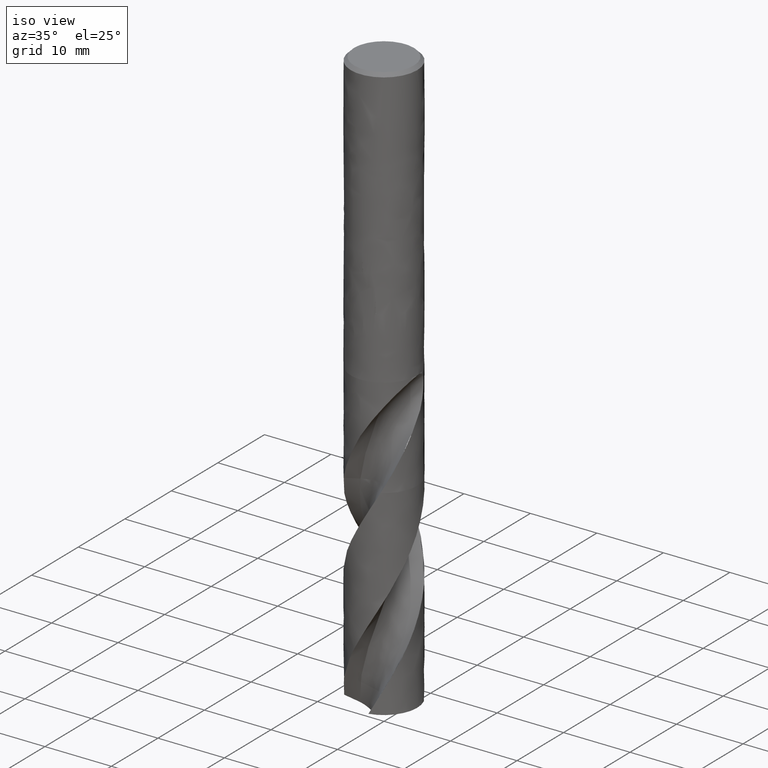
[diagram: clean part render]
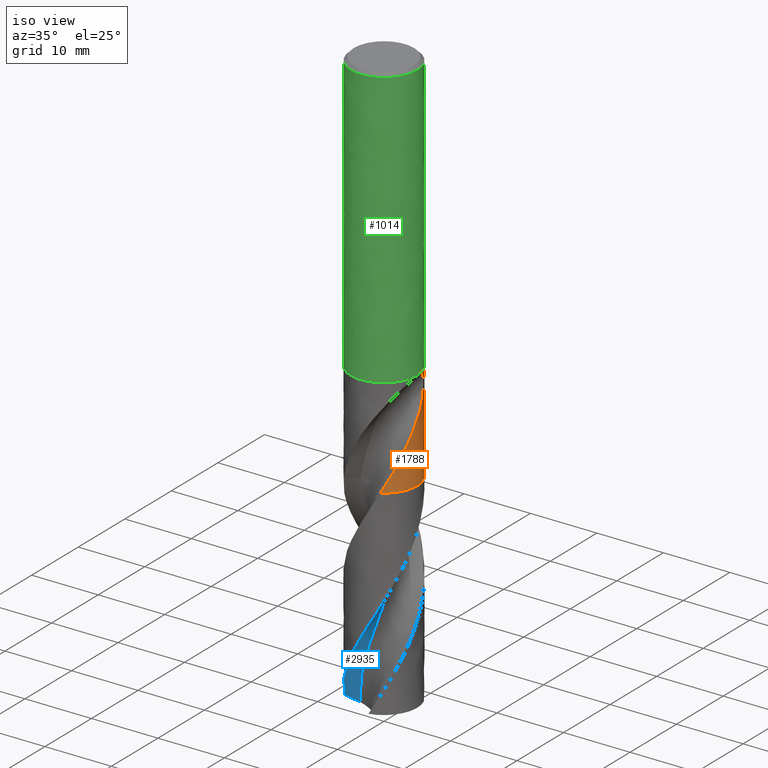
[diagram: same view with three faces highlighted in distinct colors, each labeled with its STEP entity id]
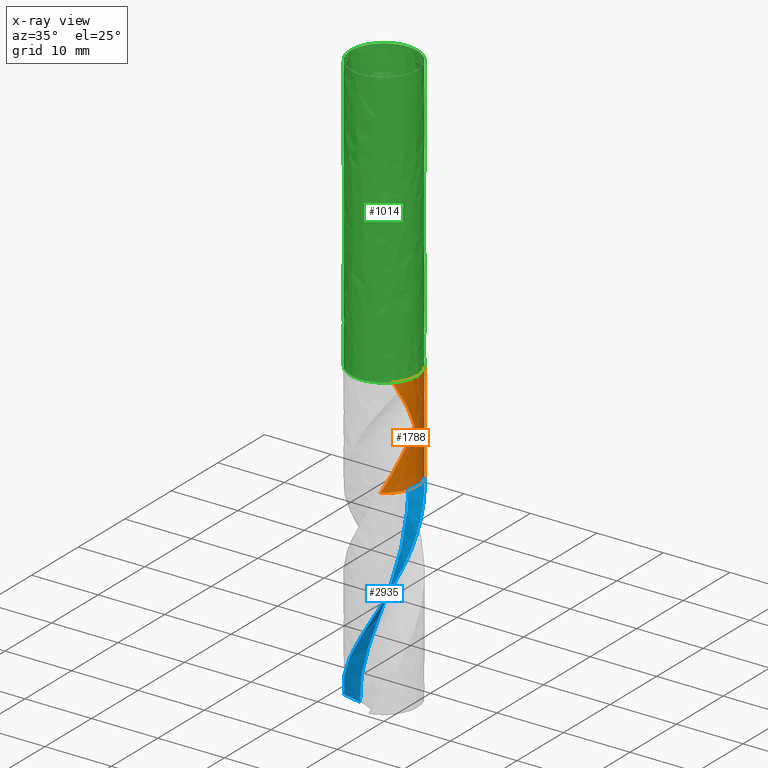
[diagram: x-ray of the same camera — body ghosted, the three highlighted faces saturated]
A machine part, iso view with three faces highlighted in distinct colors.
The next image is the same camera in x-ray (body ghosted, the three faces saturated) — at least one of them is partly hidden behind the body in this view.
Their STEP definitions:

[orange] entity #1788 — the highlighted face is a freeform B-spline surface patch.
#530 = VERTEX_POINT('', #531);
#531 = CARTESIAN_POINT('', (2.49888504584087, -4.33077054664327, -57.));
#598 = EDGE_CURVE('', #599, #530, #601, .T.);
#599 = VERTEX_POINT('', #600);
#600 = CARTESIAN_POINT('', (4.50780912676406, -2.16325145941535, -51.7296097801276));
#601 = B_SPLINE_CURVE_WITH_KNOTS('', 3, (#602, #603, #604, #605, #606, #607, #608, #609, #610, #611, #612, #613, #614, #615, #616, #617, #618, #619, #620, #621, #622, #623, #624, #625, #626, #627, #628, #629, #630, #631, #632, #633, #634, #635, #636, #637, #638, #639, #640, #641), .UNSPECIFIED., .F., .U., (4, 3, 3, 3, 3, 3, 3, 3, 3, 3, 3, 3, 3, 4), (0., 0.443538132250714, 1.10877140988273, 1.5522265696646, 1.99566824933686, 2.43907652097611, 2.63613322609804, 3.07951469221298, 3.52290078920543, 3.71995041273082, 4.38489248373352, 4.82818440142817, 5.82515596379439, 6.06441392951674), .UNSPECIFIED.);
#602 = CARTESIAN_POINT('', (4.50780912676406, -2.16325145941534, -51.7296097801275));
#603 = CARTESIAN_POINT('', (4.47728715469652, -2.22685350792157, -51.8595391509337));
#604 = CARTESIAN_POINT('', (4.44526179943293, -2.29013382638886, -51.9892820820056));
#605 = CARTESIAN_POINT('', (4.41176936778986, -2.35293243537325, -52.1188700617082));
#606 = CARTESIAN_POINT('', (4.36153630222517, -2.44711988273754, -52.3132304339312));
#607 = CARTESIAN_POINT('', (4.30799600455277, -2.54024081010483, -52.5072855114029));
#608 = CARTESIAN_POINT('', (4.25117125581794, -2.63202259749177, -52.7009802243998));
#609 = CARTESIAN_POINT('', (4.21329096798948, -2.69320580729092, -52.8301002230365));
#610 = CARTESIAN_POINT('', (4.17394560455746, -2.75380393083669, -52.959077687096));
#611 = CARTESIAN_POINT('', (4.1331395218874, -2.81374442560314, -53.0878886964062));
#612 = CARTESIAN_POINT('', (4.09233467963694, -2.87368309830389, -53.2166957901311));
#613 = CARTESIAN_POINT('', (4.05006540648036, -2.93296824575025, -53.3453532858913));
#614 = CARTESIAN_POINT('', (4.00637533614077, -2.99148068119505, -53.4738695093111));
#615 = CARTESIAN_POINT('', (3.96268855732604, -3.04998870842686, -53.6023760505688));
#616 = CARTESIAN_POINT('', (3.91757592489739, -3.10773105487842, -53.7307568283361));
#617 = CARTESIAN_POINT('', (3.87109441753696, -3.16458970650452, -53.8590230290616));
#618 = CARTESIAN_POINT('', (3.85043739944462, -3.18985846954696, -53.9160262843235));
#619 = CARTESIAN_POINT('', (3.82950946897327, -3.21495364979097, -53.9730092279596));
#620 = CARTESIAN_POINT('', (3.80831625944782, -3.23986531634038, -54.0299728183692));
#621 = CARTESIAN_POINT('', (3.76063112077028, -3.29591705652964, -54.1581420182721));
#622 = CARTESIAN_POINT('', (3.71159436807001, -3.35104809397128, -54.2862214967419));
#623 = CARTESIAN_POINT('', (3.66129008778325, -3.40513654544134, -54.4142329518352));
#624 = CARTESIAN_POINT('', (3.61098528209572, -3.45922556183575, -54.5422457439383));
#625 = CARTESIAN_POINT('', (3.55940624068419, -3.51227798560211, -54.6702062819506));
#626 = CARTESIAN_POINT('', (3.50668851434369, -3.56414585326836, -54.7981673531599));
#627 = CARTESIAN_POINT('', (3.48325970545912, -3.58719696801017, -54.8550358050098));
#628 = CARTESIAN_POINT('', (3.45960689052871, -3.61001374120938, -54.911907881635));
#629 = CARTESIAN_POINT('', (3.43574161781927, -3.63258579190975, -54.9687870085453));
#630 = CARTESIAN_POINT('', (3.35520848318775, -3.70875496123348, -55.1607250786003));
#631 = CARTESIAN_POINT('', (3.27222864866354, -3.78216450503792, -55.3527668452792));
#632 = CARTESIAN_POINT('', (3.18694996933047, -3.85270682676277, -55.5448055876266));
#633 = CARTESIAN_POINT('', (3.13009787506756, -3.8997347445916, -55.67283060827));
#634 = CARTESIAN_POINT('', (3.07221197704726, -3.94549848442977, -55.8008713394425));
#635 = CARTESIAN_POINT('', (3.01332933229081, -3.98996821229891, -55.9288927010892));
#636 = CARTESIAN_POINT('', (2.88090119634737, -4.08998143677246, -56.2168150652075));
#637 = CARTESIAN_POINT('', (2.74338812163386, -4.18346352583388, -56.5047856891781));
#638 = CARTESIAN_POINT('', (2.60165714937277, -4.26982201937241, -56.7926983254312));
#639 = CARTESIAN_POINT('', (2.56764387819926, -4.29054674038434, -56.8617929658964));
#640 = CARTESIAN_POINT('', (2.53337905418993, -4.31086726137192, -56.9309021806323));
#641 = CARTESIAN_POINT('', (2.49888504584087, -4.33077054664327, -57.));
#644 = VERTEX_POINT('', #645);
#645 = CARTESIAN_POINT('', (4.91576224831516, -0.913937370961214, -49.4225273780345));
#654 = EDGE_CURVE('', #644, #655, #657, .T.);
#655 = VERTEX_POINT('', #656);
#656 = CARTESIAN_POINT('', (4.96875036548666, 0.558139593180971, -42.));
#657 = B_SPLINE_CURVE_WITH_KNOTS('', 3, (#658, #659, #660, #661, #662, #663, #664, #665, #666, #667, #668, #669, #670, #671, #672, #673, #674, #675, #676, #677, #678, #679, #680, #681, #682, #683, #684, #685, #686, #687, #688, #689, #690, #691, #692, #693, #694, #695, #696, #697, #698, #699, #700, #701, #702, #703, #704, #705, #706, #707, #708, #709, #710, #711, #712, #713, #714, #715, #716, #717, #718, #719, #720, #721, #722, #723, #724, #725, #726, #727, #728, #729, #730, #731, #732, #733, #734, #735, #736, #737, #738, #739, #740, #741, #742, #743, #744, #745, #746, #747, #748, #749, #750, #751, #752, #753, #754, #755, #756, #757, #758, #759, #760, #761, #762, #763, #764, #765, #766, #767, #768, #769, #770, #771, #772, #773, #774, #775, #776, #777, #778), .UNSPECIFIED., .F., .U., (4, 3, 3, 3, 3, 3, 3, 3, 3, 3, 3, 3, 3, 3, 3, 3, 3, 3, 3, 3, 3, 3, 3, 3, 3, 3, 3, 3, 3, 3, 3, 3, 3, 3, 3, 3, 3, 3, 3, 3, 4), (0., 0.295344221535343, 0.590609700820748, 0.885783969001289, 1.18085766597472, 1.47582557977458, 1.60705238202402, 1.66541396342929, 1.96085482171104, 2.25617861823119, 2.55137978347731, 2.84645004682428, 3.14139342479132, 3.58303603359418, 3.87768860869778, 4.1722472535933, 4.46673402002965, 4.76117204975354, 5.05559699994133, 5.3500600415832, 5.64462593784466, 5.93938157636023, 6.23445222099013, 6.53000991950562, 6.72730130492551, 6.85886734931318, 6.89781413853448, 7.09576551957113, 7.29416961717069, 7.42630358915734, 7.55857883881599, 7.69098120128331, 7.82347969265544, 7.95602554252842, 8.08855631808143, 8.22100540731968, 8.35331390957391, 8.48544012146366, 8.617363246107, 8.74908136888184, 8.79734717165698), .UNSPECIFIED.);
#658 = CARTESIAN_POINT('', (4.91576224831516, -0.913937370961212, -49.4225273780345));
#659 = CARTESIAN_POINT('', (4.92561953914816, -0.860918313324286, -49.3401633289078));
#660 = CARTESIAN_POINT('', (4.93470176601981, -0.807287581822047, -49.2580943885015));
#661 = CARTESIAN_POINT('', (4.94294531353319, -0.753187644229691, -49.1762575757537));
#662 = CARTESIAN_POINT('', (4.95118666321966, -0.699102130318236, -49.0944425816647));
#663 = CARTESIAN_POINT('', (4.95859046979684, -0.644542575813344, -49.012851079877));
#664 = CARTESIAN_POINT('', (4.9651083648658, -0.589660008089093, -48.9314122886201));
#665 = CARTESIAN_POINT('', (4.97162424647755, -0.534794394258849, -48.8499986547984));
#666 = CARTESIAN_POINT('', (4.97725530847013, -0.479600895338786, -48.7687298678894));
#667 = CARTESIAN_POINT('', (4.98196981638965, -0.424236665772803, -48.6875298213017));
#668 = CARTESIAN_POINT('', (4.98668271799112, -0.36889129980029, -48.6063574410371));
#669 = CARTESIAN_POINT('', (4.99048006392093, -0.313370354588413, -48.5252463569579));
#670 = CARTESIAN_POINT('', (4.99334761577889, -0.257836358951503, -48.444116653588));
#671 = CARTESIAN_POINT('', (4.99621413962676, -0.20232227211148, -48.3630160350114));
#672 = CARTESIAN_POINT('', (4.99815169850873, -0.146791157768964, -48.2818888222904));
#673 = CARTESIAN_POINT('', (4.99916434264602, -0.0914104765203466, -48.2006527722483));
#674 = CARTESIAN_POINT('', (4.99961485283963, -0.0667724417828374, -48.1645120715969));
#675 = CARTESIAN_POINT('', (4.9998825722367, -0.0421633664136007, -48.1283488588457));
#676 = CARTESIAN_POINT('', (4.99996903244241, -0.0175975741766458, -48.0921563135478));
#677 = CARTESIAN_POINT('', (5.00000748460498, -0.00667222616201603, -48.0760601034561));
#678 = CARTESIAN_POINT('', (5.00001009493198, 0.00424462899285607, -48.0599579994531));
#679 = CARTESIAN_POINT('', (4.99997704240618, 0.0151517461421999, -48.0438494181951));
#680 = CARTESIAN_POINT('', (4.99980972228984, 0.070366289243845, -47.9623037685061));
#681 = CARTESIAN_POINT('', (4.99872706871735, 0.12533408698961, -47.8805868541775));
#682 = CARTESIAN_POINT('', (4.99676266861933, 0.179896730078002, -47.7986269501963));
#683 = CARTESIAN_POINT('', (4.99479904687044, 0.23443775395247, -47.7166995209744));
#684 = CARTESIAN_POINT('', (4.99195422577846, 0.288579688725504, -47.6345208950887));
#685 = CARTESIAN_POINT('', (4.98827835996071, 0.342168092533236, -47.5520257210336));
#686 = CARTESIAN_POINT('', (4.98460402052219, 0.395734244106945, -47.4695648025596));
#687 = CARTESIAN_POINT('', (4.98009876781838, 0.448754436452912, -47.3867788234736));
#688 = CARTESIAN_POINT('', (4.97482991296929, 0.501066200243078, -47.3036021742381));
#689 = CARTESIAN_POINT('', (4.96956339450361, 0.553354767277833, -47.2204624082628));
#690 = CARTESIAN_POINT('', (4.96353333856419, 0.604942177882229, -47.1369216112553));
#691 = CARTESIAN_POINT('', (4.95682338434037, 0.655669075415707, -47.0529227450327));
#692 = CARTESIAN_POINT('', (4.95011631551435, 0.706374159495017, -46.9689599997934));
#693 = CARTESIAN_POINT('', (4.94272896599085, 0.756227086886527, -46.8845273580317));
#694 = CARTESIAN_POINT('', (4.93476075268537, 0.805069136010165, -46.7995762266327));
#695 = CARTESIAN_POINT('', (4.92282930151671, 0.878204292130371, -46.6723720169623));
#696 = CARTESIAN_POINT('', (4.90958724727953, 0.94910003058161, -46.5439628414674));
#697 = CARTESIAN_POINT('', (4.89543711423202, 1.01719981350751, -46.4142161079988));
#698 = CARTESIAN_POINT('', (4.88599650986685, 1.06263423492238, -46.3276524287573));
#699 = CARTESIAN_POINT('', (4.87615117391787, 1.10683481389972, -46.2404711658526));
#700 = CARTESIAN_POINT('', (4.86604077229729, 1.1496291586163, -46.1526468750028));
#701 = CARTESIAN_POINT('', (4.85593359370005, 1.19240986122674, -46.0648505810369));
#702 = CARTESIAN_POINT('', (4.84555888058669, 1.23379660797147, -45.9763891491701));
#703 = CARTESIAN_POINT('', (4.83507209535842, 1.27360819433892, -45.8872510667605));
#704 = CARTESIAN_POINT('', (4.82458786912469, 1.31341006584811, -45.7981347359039));
#705 = CARTESIAN_POINT('', (4.81398823028242, 1.35165056481962, -45.70831460308));
#706 = CARTESIAN_POINT('', (4.80344599972155, 1.3881305874301, -45.6177944521421));
#707 = CARTESIAN_POINT('', (4.7929055138695, 1.42460457270182, -45.5272892820287));
#708 = CARTESIAN_POINT('', (4.78241874649989, 1.45933156238303, -45.4360493326001));
#709 = CARTESIAN_POINT('', (4.77217788481695, 1.49208519718682, -45.3440984575636));
#710 = CARTESIAN_POINT('', (4.76193747805391, 1.52483737700754, -45.2521516671719));
#711 = CARTESIAN_POINT('', (4.75193805447677, 1.55563256730329, -45.1594506821209));
#712 = CARTESIAN_POINT('', (4.7423908482677, 1.5842124359652, -45.0660492611581));
#713 = CARTESIAN_POINT('', (4.73284240688148, 1.61279600216957, -44.9726357563146));
#714 = CARTESIAN_POINT('', (4.72374050610413, 1.63918173420365, -44.8784659145099));
#715 = CARTESIAN_POINT('', (4.71531860745077, 1.66306056120292, -44.7836336988804));
#716 = CARTESIAN_POINT('', (4.70689376706598, 1.68694772896936, -44.6887683587833));
#717 = CARTESIAN_POINT('', (4.69914323467171, 1.70834497676398, -44.5931667655629));
#718 = CARTESIAN_POINT('', (4.69232526792099, 1.72687103746349, -44.496983046174));
#719 = CARTESIAN_POINT('', (4.68550290943179, 1.74540903157608, -44.4007373708154));
#720 = CARTESIAN_POINT('', (4.67960762645666, 1.76109255168412, -44.3038105616007));
#721 = CARTESIAN_POINT('', (4.67492206534879, 1.7734440174178, -44.2064508233223));
#722 = CARTESIAN_POINT('', (4.67023149676963, 1.78580868319489, -44.1089870364395));
#723 = CARTESIAN_POINT('', (4.66674751112022, 1.79485309783158, -44.0109536509437));
#724 = CARTESIAN_POINT('', (4.66477656311164, 1.79996100408992, -43.9127492681264));
#725 = CARTESIAN_POINT('', (4.66280236178761, 1.80507734163627, -43.8143827857336));
#726 = CARTESIAN_POINT('', (4.66234526366252, 1.80625335876384, -43.7156514444353));
#727 = CARTESIAN_POINT('', (4.66372069240419, 1.80269501115441, -43.6172061012384));
#728 = CARTESIAN_POINT('', (4.6646388219043, 1.80031973440407, -43.5514916290897));
#729 = CARTESIAN_POINT('', (4.6663747770375, 1.79582873495479, -43.4858147595635));
#730 = CARTESIAN_POINT('', (4.66901381520043, 1.78894102570978, -43.4204659134365));
#731 = CARTESIAN_POINT('', (4.67077368835122, 1.78434787706151, -43.3768872788603));
#732 = CARTESIAN_POINT('', (4.67293639262402, 1.77868455222356, -43.3334196803919));
#733 = CARTESIAN_POINT('', (4.67552272118026, 1.77185983749542, -43.2901758862358));
#734 = CARTESIAN_POINT('', (4.67628833812654, 1.76983955386335, -43.2773746581988));
#735 = CARTESIAN_POINT('', (4.67709114684847, 1.76771719158442, -43.2645912652018));
#736 = CARTESIAN_POINT('', (4.67793159081124, 1.76549030914651, -43.2518290630771));
#737 = CARTESIAN_POINT('', (4.68220324057853, 1.75417193187322, -43.1869637536088));
#738 = CARTESIAN_POINT('', (4.68745743127902, 1.74013613809877, -43.1225515579978));
#739 = CARTESIAN_POINT('', (4.69372661013598, 1.72305847529948, -43.0591251292947));
#740 = CARTESIAN_POINT('', (4.70001012666056, 1.70594175573401, -42.995553643787));
#741 = CARTESIAN_POINT('', (4.70733242771631, 1.68571902835319, -42.9328053686828));
#742 = CARTESIAN_POINT('', (4.71565771818099, 1.66209875908745, -42.8715961303544));
#743 = CARTESIAN_POINT('', (4.72120222915809, 1.64636803560323, -42.8308317515917));
#744 = CARTESIAN_POINT('', (4.72720002212456, 1.62910303575341, -42.7906788764012));
#745 = CARTESIAN_POINT('', (4.73361478708431, 1.61024564818439, -42.7513955266993));
#746 = CARTESIAN_POINT('', (4.74003641071217, 1.59136809829242, -42.7120701752312));
#747 = CARTESIAN_POINT('', (4.74688770976752, 1.57085966620682, -42.6735468122599));
#748 = CARTESIAN_POINT('', (4.75410552960522, 1.54870288092233, -42.6361160448262));
#749 = CARTESIAN_POINT('', (4.76133028556554, 1.52652480358799, -42.5986493074738));
#750 = CARTESIAN_POINT('', (4.76893737464684, 1.50264789108332, -42.5622010617913));
#751 = CARTESIAN_POINT('', (4.77683333078357, 1.47711317437598, -42.5270805159508));
#752 = CARTESIAN_POINT('', (4.7847350196701, 1.4515599185406, -42.4919344713236));
#753 = CARTESIAN_POINT('', (4.79294426116584, 1.4242857491629, -42.4580377745828));
#754 = CARTESIAN_POINT('', (4.80133799124767, 1.39540441944326, -42.4256948601667));
#755 = CARTESIAN_POINT('', (4.80973472147289, 1.36651276676475, -42.3933403855289));
#756 = CARTESIAN_POINT('', (4.81833683371033, 1.33593912045505, -42.3624604010724));
#757 = CARTESIAN_POINT('', (4.82699823640555, 1.30387423693304, -42.3333250608455));
#758 = CARTESIAN_POINT('', (4.83565865404725, 1.27181300012132, -42.3041930341547));
#759 = CARTESIAN_POINT('', (4.84440045269669, 1.23817653459206, -42.2767292835594));
#760 = CARTESIAN_POINT('', (4.85306658603695, 1.20322263587904, -42.2511417120366));
#761 = CARTESIAN_POINT('', (4.86172737794241, 1.16829028125764, -42.2255699116011));
#762 = CARTESIAN_POINT('', (4.87033460795792, 1.13195115898314, -42.2018046487162));
#763 = CARTESIAN_POINT('', (4.87873489079992, 1.09450713350416, -42.1799740303685));
#764 = CARTESIAN_POINT('', (4.88712625723157, 1.05710285267456, -42.1581665839491));
#765 = CARTESIAN_POINT('', (4.89533161773816, 1.01850330879734, -42.1382339334954));
#766 = CARTESIAN_POINT('', (4.90321417130829, 0.979025428822761, -42.1202222063091));
#767 = CARTESIAN_POINT('', (4.91108586455168, 0.93960194019119, -42.1022352950965));
#768 = CARTESIAN_POINT('', (4.91865353356978, 0.899212767497855, -42.0861210086274));
#769 = CARTESIAN_POINT('', (4.92580504748176, 0.858163524162624, -42.0718549841026));
#770 = CARTESIAN_POINT('', (4.93294556901572, 0.817177376390923, -42.0576108874572));
#771 = CARTESIAN_POINT('', (4.93968588871004, 0.775449966086918, -42.0451785199102));
#772 = CARTESIAN_POINT('', (4.94594110244128, 0.733257534011003, -42.0344819492971));
#773 = CARTESIAN_POINT('', (4.95218659588651, 0.691130666842192, -42.0238020006142));
#774 = CARTESIAN_POINT('', (4.95795983465945, 0.648465676916965, -42.0148319953895));
#775 = CARTESIAN_POINT('', (4.96320146615682, 0.60550078971148, -42.0074642144231));
#776 = CARTESIAN_POINT('', (4.96512217036017, 0.589757058109258, -42.0047644199261));
#777 = CARTESIAN_POINT('', (4.96697252718047, 0.573966520425645, -42.002278320582));
#778 = CARTESIAN_POINT('', (4.96875036548666, 0.558139593180972, -42.));
#973 = EDGE_CURVE('', #644, #599, #974, .T.);
#974 = B_SPLINE_CURVE_WITH_KNOTS('', 3, (#975, #976, #977, #978, #979, #980, #981, #982, #983, #984, #985, #986, #987, #988, #989, #990, #991, #992, #993, #994, #995, #996, #997, #998, #999), .UNSPECIFIED., .F., .U., (4, 3, 3, 3, 3, 3, 3, 3, 4), (0., 0.443936980465237, 0.739783554490579, 1.03563893588282, 1.33141696599083, 1.62707101147293, 1.9226939307128, 2.05408032846361, 2.65812193535426), .UNSPECIFIED.);
#975 = CARTESIAN_POINT('', (4.91576224831516, -0.913937370961214, -49.4225273780345));
#976 = CARTESIAN_POINT('', (4.90094558488013, -0.993631228630384, -49.5463301972605));
#977 = CARTESIAN_POINT('', (4.88443833948813, -1.07162483159131, -49.6710508413826));
#978 = CARTESIAN_POINT('', (4.86648393271429, -1.14775177309107, -49.7966697514604));
#979 = CARTESIAN_POINT('', (4.85451883413851, -1.1984839621737, -49.8803841654756));
#980 = CARTESIAN_POINT('', (4.84190949898331, -1.24839455867595, -49.9645120420187));
#981 = CARTESIAN_POINT('', (4.82873815158145, -1.29741584060916, -50.0490605560931));
#982 = CARTESIAN_POINT('', (4.81556641206793, -1.34643858190833, -50.1336115871809));
#983 = CARTESIAN_POINT('', (4.80183078405628, -1.39457805361606, -50.2185949116225));
#984 = CARTESIAN_POINT('', (4.78762586251703, -1.4417484525951, -50.304027776543));
#985 = CARTESIAN_POINT('', (4.77342465484947, -1.4889065188901, -50.3894383050714));
#986 = CARTESIAN_POINT('', (4.75875495293743, -1.53510160726549, -50.4753085704345));
#987 = CARTESIAN_POINT('', (4.74364309927205, -1.58045884056823, -50.5615342578212));
#988 = CARTESIAN_POINT('', (4.72853758021347, -1.62579706096591, -50.6477238010102));
#989 = CARTESIAN_POINT('', (4.71298977826065, -1.67030290058957, -50.7342771978444));
#990 = CARTESIAN_POINT('', (4.69696608626332, -1.71420815086515, -50.8210408917665));
#991 = CARTESIAN_POINT('', (4.6809440812286, -1.758108778828, -50.9077954512702));
#992 = CARTESIAN_POINT('', (4.66444575624228, -1.80141322228033, -50.9947657949487));
#993 = CARTESIAN_POINT('', (4.64736567880319, -1.84444903629298, -51.0817515009151));
#994 = CARTESIAN_POINT('', (4.63977462377337, -1.86357583671812, -51.1204113537849));
#995 = CARTESIAN_POINT('', (4.63206755422759, -1.88265099163278, -51.1590741975541));
#996 = CARTESIAN_POINT('', (4.62423045752162, -1.90170783132673, -51.1977195027151));
#997 = CARTESIAN_POINT('', (4.58819984424143, -1.98932058476277, -51.3753891293112));
#998 = CARTESIAN_POINT('', (4.54937610762227, -2.07663369019156, -51.5526627710265));
#999 = CARTESIAN_POINT('', (4.50780912676406, -2.16325145941535, -51.7296097801276));
#1021 = VERTEX_POINT('', #1022);
#1022 = CARTESIAN_POINT('', (-4.99978048467422, 0.0468519484205006, -42.));
#1079 = EDGE_CURVE('', #1021, #655, #1080, .T.);
#1080 = CIRCLE('', #1081, 5.);
#1081 = AXIS2_PLACEMENT_3D('', #1082, #1083, #1084);
#1082 = CARTESIAN_POINT('', (1.57474777179495E-31, 2.57175827820944E-15, -42.));
#1083 = DIRECTION('', (3.74939945665464E-33, 6.12323399573677E-17, -1.));
#1084 = DIRECTION('', (-1., 6.12323399573677E-17, 0.));
#1115 = VERTEX_POINT('', #1116);
#1116 = CARTESIAN_POINT('', (3.74679084011303, 3.31082442911809, -57.));
#1125 = VERTEX_POINT('', #1126);
#1126 = CARTESIAN_POINT('', (-3.11223655636923, 3.91330852568501, -44.9355207943384));
#1146 = EDGE_CURVE('', #1125, #1115, #1147, .T.);
#1147 = B_SPLINE_CURVE_WITH_KNOTS('', 3, (#1148, #1149, #1150, #1151, #1152, #1153, #1154, #1155, #1156, #1157, #1158, #1159, #1160, #1161, #1162, #1163, #1164, #1165, #1166, #1167, #1168, #1169, #1170, #1171, #1172, #1173, #1174, #1175, #1176, #1177, #1178, #1179, #1180, #1181, #1182, #1183, #1184, #1185, #1186, #1187, #1188, #1189, #1190, #1191, #1192, #1193, #1194, #1195, #1196, #1197, #1198, #1199, #1200, #1201, #1202, #1203, #1204, #1205, #1206, #1207, #1208, #1209, #1210, #1211, #1212, #1213, #1214, #1215, #1216, #1217, #1218, #1219, #1220, #1221, #1222, #1223, #1224, #1225, #1226, #1227, #1228, #1229, #1230, #1231, #1232, #1233, #1234, #1235, #1236, #1237, #1238, #1239, #1240, #1241, #1242, #1243, #1244, #1245, #1246, #1247, #1248, #1249, #1250, #1251, #1252, #1253), .UNSPECIFIED., .F., .U., (4, 3, 3, 3, 3, 3, 3, 3, 3, 3, 3, 3, 3, 3, 3, 3, 3, 3, 3, 3, 3, 3, 3, 3, 3, 3, 3, 3, 3, 3, 3, 3, 3, 3, 3, 4), (0., 0.441617862061254, 0.883295515616824, 1.32504069758578, 1.76687823877477, 2.20881301321261, 2.65085381195773, 3.09301118375152, 3.53528518132386, 3.97769816590108, 4.42024799874072, 5.08384617138997, 5.52660437276213, 5.72353704153992, 5.92071011528679, 6.36487586102324, 6.5620632959882, 6.75923084290979, 6.95635677202061, 7.15345846746876, 7.35055410867163, 7.54766215418007, 7.67906677530217, 8.12281270913226, 8.56646739646392, 9.01004648756988, 9.67550793348341, 10.3409468716708, 10.7844638263923, 11.2279605820959, 11.6714702821259, 11.8685458088776, 12.5337714205345, 12.9771865587877, 13.97479093053, 14.281962065101), .UNSPECIFIED.);
#1148 = CARTESIAN_POINT('', (-3.11223655636923, 3.91330852568501, -44.9355207943384));
#1149 = CARTESIAN_POINT('', (-3.03786335632011, 3.97245719502396, -45.0479470142737));
#1150 = CARTESIAN_POINT('', (-2.96227095829552, 4.02911256481388, -45.1609122601688));
#1151 = CARTESIAN_POINT('', (-2.88567430060519, 4.08324427763351, -45.2743684305473));
#1152 = CARTESIAN_POINT('', (-2.80906727234561, 4.13738331945016, -45.3878399619755));
#1153 = CARTESIAN_POINT('', (-2.73142846686673, 4.18901711805797, -45.501842226604));
#1154 = CARTESIAN_POINT('', (-2.65297902425653, 4.23812485621352, -45.6163392836826));
#1155 = CARTESIAN_POINT('', (-2.57451758745475, 4.2872401024864, -45.7308538462984));
#1156 = CARTESIAN_POINT('', (-2.49522275661122, 4.33384308124789, -45.8459050949925));
#1157 = CARTESIAN_POINT('', (-2.41529711072061, 4.37793785553709, -45.9614457005902));
#1158 = CARTESIAN_POINT('', (-2.33535475413203, 4.4220418490756, -46.0770104631921));
#1159 = CARTESIAN_POINT('', (-2.25475489421618, 4.46365111939026, -46.1931009547815));
#1160 = CARTESIAN_POINT('', (-2.17370010807329, 4.50278001241035, -46.3096780037773));
#1161 = CARTESIAN_POINT('', (-2.09262748455931, 4.54191751635424, -46.4262807073727));
#1162 = CARTESIAN_POINT('', (-2.01107547997199, 4.57858511801088, -46.5434060731033));
#1163 = CARTESIAN_POINT('', (-1.92925167475191, 4.61280695189675, -46.6610259522435));
#1164 = CARTESIAN_POINT('', (-1.84740823923169, 4.64703699592231, -46.7786740494985));
#1165 = CARTESIAN_POINT('', (-1.76526647074106, 4.67883155404652, -46.8968485388196));
#1166 = CARTESIAN_POINT('', (-1.68301145001801, 4.70823453739385, -47.0155106421871));
#1167 = CARTESIAN_POINT('', (-1.6007347373639, 4.7376452747662, -47.1342040386008));
#1168 = CARTESIAN_POINT('', (-1.51832167796704, 4.7646712772293, -47.2534177204411));
#1169 = CARTESIAN_POINT('', (-1.43596076452965, 4.78936495610133, -47.3731234990473));
#1170 = CARTESIAN_POINT('', (-1.35357812713997, 4.81406514830935, -47.4928608518858));
#1171 = CARTESIAN_POINT('', (-1.27123193507795, 4.83643676535524, -47.6131261219404));
#1172 = CARTESIAN_POINT('', (-1.18909326260918, 4.85654786991929, -47.7338854448164));
#1173 = CARTESIAN_POINT('', (-1.10692877761666, 4.87666529450713, -47.8546827169652));
#1174 = CARTESIAN_POINT('', (-1.02494756915307, 4.89452689670552, -47.9760013807958));
#1175 = CARTESIAN_POINT('', (-0.943307655780459, 4.91021085764616, -48.0978070959263));
#1176 = CARTESIAN_POINT('', (-0.861642489350912, 4.92589966998781, -48.2196504882974));
#1177 = CARTESIAN_POINT('', (-0.780299087524788, 4.93941306166111, -48.3420095194607));
#1178 = CARTESIAN_POINT('', (-0.699443825920688, 4.95083612477548, -48.4648634604035));
#1179 = CARTESIAN_POINT('', (-0.578202329781653, 4.96796487106855, -48.6490814730717));
#1180 = CARTESIAN_POINT('', (-0.458014505655192, 4.98039750435676, -48.8344909407895));
#1181 = CARTESIAN_POINT('', (-0.339391341661622, 4.98846805314068, -49.0210186377504));
#1182 = CARTESIAN_POINT('', (-0.260244983374965, 4.99385279018628, -49.1454714632951));
#1183 = CARTESIAN_POINT('', (-0.181773627257921, 4.99729847152518, -49.2704545261476));
#1184 = CARTESIAN_POINT('', (-0.104113798823132, 4.99891591416538, -49.3959454905073));
#1185 = CARTESIAN_POINT('', (-0.0695717909662673, 4.99963533007849, -49.4517621200859));
#1186 = CARTESIAN_POINT('', (-0.0351867580400331, 4.99999330312183, -49.5076819821108));
#1187 = CARTESIAN_POINT('', (-0.000964847501432127, 4.99999990690693, -49.5637000577564));
#1188 = CARTESIAN_POINT('', (0.0332988393325705, 5.00000651875358, -49.6197865173009));
#1189 = CARTESIAN_POINT('', (0.0674003153119547, 4.99966088657939, -49.6759735009007));
#1190 = CARTESIAN_POINT('', (0.101331278077623, 4.99897309175427, -49.7322576720992));
#1191 = CARTESIAN_POINT('', (0.177766518924537, 4.99742371741217, -49.8590473011213));
#1192 = CARTESIAN_POINT('', (0.253352075963272, 4.99413657486642, -49.9863430994145));
#1193 = CARTESIAN_POINT('', (0.327940057536306, 4.98923394106381, -50.1141435447126));
#1194 = CARTESIAN_POINT('', (0.361053400712318, 4.98705741621157, -50.1708805674065));
#1195 = CARTESIAN_POINT('', (0.393970945031596, 4.98456259128449, -50.2277209837458));
#1196 = CARTESIAN_POINT('', (0.426673954096173, 4.98176167002156, -50.2846682272182));
#1197 = CARTESIAN_POINT('', (0.459373664781911, 4.97896103125555, -50.3416097270728));
#1198 = CARTESIAN_POINT('', (0.491858067659873, 4.97585453682099, -50.3986610993821));
#1199 = CARTESIAN_POINT('', (0.524125119315523, 4.97245340443755, -50.4558163155753));
#1200 = CARTESIAN_POINT('', (0.556385360093466, 4.9690529899597, -50.5129594675367));
#1201 = CARTESIAN_POINT('', (0.588429343307588, 4.9653580778591, -50.5702083166464));
#1202 = CARTESIAN_POINT('', (0.620274015837375, 4.96137683967637, -50.6275467186451));
#1203 = CARTESIAN_POINT('', (0.652114773544515, 4.95739609092687, -50.6848780717512));
#1204 = CARTESIAN_POINT('', (0.683757216874535, 4.95312909176466, -50.7423006474723));
#1205 = CARTESIAN_POINT('', (0.715237824465065, 4.94857907428532, -50.7997883239571));
#1206 = CARTESIAN_POINT('', (0.746717465086134, 4.94402919656592, -50.8572742346301));
#1207 = CARTESIAN_POINT('', (0.778036157346465, 4.93919631233191, -50.91482668837));
#1208 = CARTESIAN_POINT('', (0.809249393233243, 4.93407695719794, -50.9724098907409));
#1209 = CARTESIAN_POINT('', (0.840464593539495, 4.92895727987498, -51.0299967171373));
#1210 = CARTESIAN_POINT('', (0.871575160806699, 4.92355107321719, -51.0876155475373));
#1211 = CARTESIAN_POINT('', (0.902653952065406, 4.91784666727428, -51.1452211973227));
#1212 = CARTESIAN_POINT('', (0.923373029157104, 4.91404375146879, -51.1836247468329));
#1213 = CARTESIAN_POINT('', (0.944081890820029, 4.9101074259644, -51.2220208422957));
#1214 = CARTESIAN_POINT('', (0.964793285320242, 4.9060344389946, -51.2604008351845));
#1215 = CARTESIAN_POINT('', (1.03473448689245, 4.89228019358862, -51.3900078888738));
#1216 = CARTESIAN_POINT('', (1.10466273093533, 4.87697348186181, -51.5194665804214));
#1217 = CARTESIAN_POINT('', (1.17441915857068, 4.8601172454975, -51.6488066260734));
#1218 = CARTESIAN_POINT('', (1.24416124234554, 4.84326447524391, -51.7781200758169));
#1219 = CARTESIAN_POINT('', (1.31373924460161, 4.82486116231397, -51.9073294195361));
#1220 = CARTESIAN_POINT('', (1.38301042330701, 4.80492270167005, -52.0364568913883));
#1221 = CARTESIAN_POINT('', (1.45226979859905, 4.78498763842599, -52.1655623606566));
#1222 = CARTESIAN_POINT('', (1.5212214751928, 4.76351932152333, -52.294605770007));
#1223 = CARTESIAN_POINT('', (1.58979442773776, 4.74052251102492, -52.4235685045219));
#1224 = CARTESIAN_POINT('', (1.6926682039506, 4.70602248369604, -52.6170395889349));
#1225 = CARTESIAN_POINT('', (1.79471831800044, 4.66807314476667, -52.8103670523207));
#1226 = CARTESIAN_POINT('', (1.89574835410813, 4.62667679635139, -53.0034566697627));
#1227 = CARTESIAN_POINT('', (1.99677497310368, 4.58528184807383, -53.1965397563857));
#1228 = CARTESIAN_POINT('', (2.09682346334322, 4.54041911913717, -53.3894254467347));
#1229 = CARTESIAN_POINT('', (2.19554661977877, 4.49216818923536, -53.5821080457815));
#1230 = CARTESIAN_POINT('', (2.26134588578215, 4.46000880651148, -53.7105315489054));
#1231 = CARTESIAN_POINT('', (2.32656453604128, 4.4263410851514, -53.8388850762187));
#1232 = CARTESIAN_POINT('', (2.39108952528922, 4.39120608512652, -53.9671754616503));
#1233 = CARTESIAN_POINT('', (2.45561157588645, 4.35607268524903, -54.0954600043745));
#1234 = CARTESIAN_POINT('', (2.51944992313775, 4.31946708512259, -54.223695578429));
#1235 = CARTESIAN_POINT('', (2.58251241205389, 4.28142845807186, -54.3518773245787));
#1236 = CARTESIAN_POINT('', (2.645576741573, 4.24338872078888, -54.4800628119651));
#1237 = CARTESIAN_POINT('', (2.70787228668931, 4.20391067025371, -54.6082100630195));
#1238 = CARTESIAN_POINT('', (2.7692673178345, 4.16307080439112, -54.7363443907922));
#1239 = CARTESIAN_POINT('', (2.79654847561313, 4.14492342660707, -54.7932814547145));
#1240 = CARTESIAN_POINT('', (2.82365241710255, 4.12650701391929, -54.8502185929537));
#1241 = CARTESIAN_POINT('', (2.8505655585614, 4.10783105742478, -54.9071598750266));
#1242 = CARTESIAN_POINT('', (2.94141048123481, 4.04479063435895, -55.0993643553079));
#1243 = CARTESIAN_POINT('', (3.03009493751134, 3.97878375489392, -55.291651815341));
#1244 = CARTESIAN_POINT('', (3.11645265896779, 3.90995176753021, -55.4839379526897));
#1245 = CARTESIAN_POINT('', (3.1740155674425, 3.8640708744042, -55.6121088809921));
#1246 = CARTESIAN_POINT('', (3.23055510875337, 3.81692697823629, -55.740297603066));
#1247 = CARTESIAN_POINT('', (3.28603285030874, 3.76855252141878, -55.8684711719776));
#1248 = CARTESIAN_POINT('', (3.41084779850392, 3.65971868730135, -56.1568386670337));
#1249 = CARTESIAN_POINT('', (3.53032884290604, 3.54460295713987, -56.4452612041829));
#1250 = CARTESIAN_POINT('', (3.64374610165785, 3.42390337869708, -56.733614328195));
#1251 = CARTESIAN_POINT('', (3.67866827024245, 3.38673892001717, -56.8224007837969));
#1252 = CARTESIAN_POINT('', (3.71302680785534, 3.34903447906087, -56.9112093937681));
#1253 = CARTESIAN_POINT('', (3.74679084011303, 3.31082442911809, -57.));
#1552 = EDGE_CURVE('', #1125, #1021, #1553, .T.);
#1553 = B_SPLINE_CURVE_WITH_KNOTS('', 3, (#1554, #1555, #1556, #1557, #1558, #1559, #1560, #1561, #1562, #1563, #1564, #1565, #1566, #1567, #1568, #1569, #1570, #1571, #1572, #1573, #1574, #1575, #1576, #1577, #1578, #1579, #1580, #1581, #1582, #1583, #1584, #1585, #1586, #1587, #1588, #1589, #1590, #1591, #1592, #1593, #1594, #1595, #1596, #1597, #1598, #1599, #1600, #1601, #1602, #1603, #1604, #1605), .UNSPECIFIED., .F., .U., (4, 3, 3, 3, 3, 3, 3, 3, 3, 3, 3, 3, 3, 3, 3, 3, 3, 4), (0., 0.447767069739203, 0.895766207094669, 1.3439429688872, 1.79224359108956, 2.24058995543152, 2.68891917858524, 2.98662818473219, 3.28428462520408, 3.58186437427631, 3.87933674741077, 4.17666186537461, 4.4737869052673, 4.77064083524864, 4.96806335505841, 5.1653385111915, 5.36243252669375, 5.43380457491011), .UNSPECIFIED.);
#1554 = CARTESIAN_POINT('', (-3.11223655636923, 3.91330852568501, -44.9355207943384));
#1555 = CARTESIAN_POINT('', (-3.18764534916055, 3.85333625412594, -44.821529121023));
#1556 = CARTESIAN_POINT('', (-3.26309862559995, 3.78976740507964, -44.7093809114196));
#1557 = CARTESIAN_POINT('', (-3.3381036922315, 3.72250772194101, -44.5992553649959));
#1558 = CARTESIAN_POINT('', (-3.4131476323046, 3.65521317961914, -44.4890727429747));
#1559 = CARTESIAN_POINT('', (-3.4878000596427, 3.58417196834745, -44.3808225886282));
#1560 = CARTESIAN_POINT('', (-3.56153939450857, 3.50933571226287, -44.2746981153327));
#1561 = CARTESIAN_POINT('', (-3.63530796583218, 3.43446978480897, -44.168531565394));
#1562 = CARTESIAN_POINT('', (-3.70822815581825, 3.35573904456046, -44.0643975307802));
#1563 = CARTESIAN_POINT('', (-3.77976119401912, 3.2731338677462, -43.9625277376923));
#1564 = CARTESIAN_POINT('', (-3.85131400145432, 3.19050586174505, -43.8606297913501));
#1565 = CARTESIAN_POINT('', (-3.92155149938022, 3.10391654578574, -43.7608992752115));
#1566 = CARTESIAN_POINT('', (-3.98990765193207, 3.0134095189758, -43.6636043750231));
#1567 = CARTESIAN_POINT('', (-4.05827077917125, 2.92289325732467, -43.5662995473961));
#1568 = CARTESIAN_POINT('', (-4.12482646552395, 2.82835943957881, -43.4713182621919));
#1569 = CARTESIAN_POINT('', (-4.18898903840309, 2.72990308182154, -43.3789903134036));
#1570 = CARTESIAN_POINT('', (-4.25314915821731, 2.63145048824996, -43.2866658944996));
#1571 = CARTESIAN_POINT('', (-4.31499764703136, 2.52895027807034, -43.19687632255));
#1572 = CARTESIAN_POINT('', (-4.3739292589054, 2.42254883089924, -43.1100487368221));
#1573 = CARTESIAN_POINT('', (-4.4130622680772, 2.35189390265905, -43.0523916560024));
#1574 = CARTESIAN_POINT('', (-4.45094006460147, 2.27946439408717, -42.9959965060637));
#1575 = CARTESIAN_POINT('', (-4.4873789299744, 2.20531864791052, -42.9410195320259));
#1576 = CARTESIAN_POINT('', (-4.52381136143528, 2.13118599344799, -42.8860522651239));
#1577 = CARTESIAN_POINT('', (-4.55883141122369, 2.05528444351045, -42.8324629450123));
#1578 = CARTESIAN_POINT('', (-4.59224902063273, 1.97768777427018, -42.7804399380376));
#1579 = CARTESIAN_POINT('', (-4.62565801997026, 1.90011109786851, -42.7284303348287));
#1580 = CARTESIAN_POINT('', (-4.6574922258549, 1.82077743213662, -42.6779438390165));
#1581 = CARTESIAN_POINT('', (-4.68755427977518, 1.7397801223607, -42.629209769749));
#1582 = CARTESIAN_POINT('', (-4.71760548638061, 1.65881203890856, -42.5804932852345));
#1583 = CARTESIAN_POINT('', (-4.74591323880384, 1.57610681827923, -42.5334825525517));
#1584 = CARTESIAN_POINT('', (-4.77227212941873, 1.49178373860733, -42.4884600188602));
#1585 = CARTESIAN_POINT('', (-4.79861797182045, 1.40750240065871, -42.4434597722833));
#1586 = CARTESIAN_POINT('', (-4.82304458006555, 1.32151467090965, -42.4003969837333));
#1587 = CARTESIAN_POINT('', (-4.84533832344783, 1.23397590386839, -42.3596241643416));
#1588 = CARTESIAN_POINT('', (-4.86761706477039, 1.14649604401862, -42.318878782077));
#1589 = CARTESIAN_POINT('', (-4.88779321977689, 1.05735655696326, -42.2803678735103));
#1590 = CARTESIAN_POINT('', (-4.90564616154125, 0.966765606419476, -42.2445376276268));
#1591 = CARTESIAN_POINT('', (-4.92348281349894, 0.87625731503017, -42.2087400748304));
#1592 = CARTESIAN_POINT('', (-4.93902655631516, 0.784161270956829, -42.1755622768118));
#1593 = CARTESIAN_POINT('', (-4.95205422494627, 0.69076693116548, -42.1455766320053));
#1594 = CARTESIAN_POINT('', (-4.96071826779241, 0.628655084107445, -42.1256346977477));
#1595 = CARTESIAN_POINT('', (-4.96827852573402, 0.56590810025658, -42.1070865646695));
#1596 = CARTESIAN_POINT('', (-4.97467096543253, 0.502641806540754, -42.0901413376276));
#1597 = CARTESIAN_POINT('', (-4.98105863357095, 0.439422737192547, -42.0732087591476));
#1598 = CARTESIAN_POINT('', (-4.98628609841145, 0.375622710758616, -42.0578598873718));
#1599 = CARTESIAN_POINT('', (-4.99029399848184, 0.3113933344118, -42.0443436305451));
#1600 = CARTESIAN_POINT('', (-4.99429821844593, 0.247222934319157, -42.0308397845223));
#1601 = CARTESIAN_POINT('', (-4.99708922349242, 0.182547810705558, -42.0191492317144));
#1602 = CARTESIAN_POINT('', (-4.99861753099287, 0.117570314496146, -42.0095671053576));
#1603 = CARTESIAN_POINT('', (-4.99917096452222, 0.094040543789418, -42.0060972080976));
#1604 = CARTESIAN_POINT('', (-4.99955922252003, 0.0704638202384412, -42.0029029532359));
#1605 = CARTESIAN_POINT('', (-4.99978048467422, 0.0468519484204953, -42.));
#1788 = ADVANCED_FACE('', (#1789), #1804, .T.);
#1789 = FACE_OUTER_BOUND('', #1790, .T.);
#1790 = EDGE_LOOP('', (#1791, #1798, #1799, #1800, #1801, #1802, #1803));
#1791 = ORIENTED_EDGE('', *, *, #1792, .F.);
#1792 = EDGE_CURVE('', #1115, #530, #1793, .T.);
#1793 = CIRCLE('', #1794, 5.);
#1794 = AXIS2_PLACEMENT_3D('', #1795, #1796, #1797);
#1795 = CARTESIAN_POINT('', (2.13715769029315E-31, 3.49024337756996E-15, -57.));
#1796 = DIRECTION('', (3.74939945665464E-33, 6.12323399573677E-17, -1.));
#1797 = DIRECTION('', (-1., 6.12323399573677E-17, 0.));
#1798 = ORIENTED_EDGE('', *, *, #1146, .F.);
#1799 = ORIENTED_EDGE('', *, *, #1552, .T.);
#1800 = ORIENTED_EDGE('', *, *, #1079, .T.);
#1801 = ORIENTED_EDGE('', *, *, #654, .F.);
#1802 = ORIENTED_EDGE('', *, *, #973, .T.);
#1803 = ORIENTED_EDGE('', *, *, #598, .T.);
#1804 = (
   BOUNDED_SURFACE ()
   B_SPLINE_SURFACE (2, 1, ((#1805, #1806), (#1807, #1808), (#1809, #1810), (#1811, #1812), (#1813, #1814), (#1815, #1816), (#1817, #1818), (#1819, #1820), (#1821, #1822)), .UNSPECIFIED., .T., .F., .U.)
   B_SPLINE_SURFACE_WITH_KNOTS ((3, 2, 2, 2, 3), (2, 2), (0., 7.85398163397448, 15.707963267949, 23.5619449019235, 31.4159265358979), (0., 0.332004218420852), .UNSPECIFIED.)
   GEOMETRIC_REPRESENTATION_ITEM ()
   RATIONAL_B_SPLINE_SURFACE (((1., 1.), (0.707106781186548, 0.707106781186548), (1., 1.), (0.707106781186548, 0.707106781186548), (1., 1.), (0.707106781186548, 0.707106781186548), (1., 1.), (0.707106781186548, 0.707106781186548), (1., 1.)))
   REPRESENTATION_ITEM ('')
   SURFACE ()
);
#1805 = CARTESIAN_POINT('', (-5., 2.87791997799628E-15, -42.));
#1806 = CARTESIAN_POINT('', (-5., 3.7964050773568E-15, -57.));
#1807 = CARTESIAN_POINT('', (-5., 5., -42.));
#1808 = CARTESIAN_POINT('', (-5., 5., -57.));
#1809 = CARTESIAN_POINT('', (1.4791141972894E-31, 5., -42.));
#1810 = CARTESIAN_POINT('', (1.4791141972894E-31, 5., -57.));
#1811 = CARTESIAN_POINT('', (5., 5., -42.));
#1812 = CARTESIAN_POINT('', (5., 5., -57.));
#1813 = CARTESIAN_POINT('', (5., 2.87791997799628E-15, -42.));
#1814 = CARTESIAN_POINT('', (5., 3.7964050773568E-15, -57.));
#1815 = CARTESIAN_POINT('', (5., -5., -42.));
#1816 = CARTESIAN_POINT('', (5., -5., -57.));
#1817 = CARTESIAN_POINT('', (6.12323399573677E-16, -5., -42.));
#1818 = CARTESIAN_POINT('', (6.12323399573677E-16, -5., -57.));
#1819 = CARTESIAN_POINT('', (-5., -5., -42.));
#1820 = CARTESIAN_POINT('', (-5., -5., -57.));
#1821 = CARTESIAN_POINT('', (-5., 2.87791997799628E-15, -42.));
#1822 = CARTESIAN_POINT('', (-5., 3.7964050773568E-15, -57.));

[blue] entity #2935 — the highlighted face is a freeform B-spline surface patch.
#1976 = VERTEX_POINT('', #1977);
#1977 = CARTESIAN_POINT('', (3.74679084011303, 3.31082442911809, -57.));
#1984 = EDGE_CURVE('', #1976, #1985, #1987, .T.);
#1985 = VERTEX_POINT('', #1986);
#1986 = CARTESIAN_POINT('', (1.943946066787, 2.27613531000841, -57.));
#1987 = LINE('', #1988, #1989);
#1988 = CARTESIAN_POINT('', (3.74679084011303, 3.31082442911809, -57.));
#1989 = VECTOR('', #1990, 2.07866083089882);
#1990 = DIRECTION('', (-1.80284477332604, -1.03468911910968, 0.));
#2551 = EDGE_CURVE('', #2552, #1985, #2554, .T.);
#2552 = VERTEX_POINT('', #2553);
#2553 = CARTESIAN_POINT('', (-2.664890963748, -1.36431395231352, -87.9103363101733));
#2554 = (
   BOUNDED_CURVE ()
   B_SPLINE_CURVE (3, (#2555, #2556, #2557, #2558, #2559, #2560, #2561, #2562, #2563, #2564, #2565, #2566, #2567, #2568, #2569, #2570, #2571, #2572, #2573, #2574, #2575, #2576, #2577, #2578, #2579, #2580, #2581, #2582, #2583, #2584, #2585, #2586, #2587, #2588, #2589, #2590, #2591), .UNSPECIFIED., .F., .U.)
   B_SPLINE_CURVE_WITH_KNOTS ((4, 1, 1, 1, 1, 1, 1, 1, 1, 1, 1, 1, 1, 1, 1, 1, 1, 1, 1, 1, 1, 1, 1, 1, 1, 1, 1, 1, 1, 1, 1, 1, 1, 1, 4), (1.13966368982673, 1.84588235294118, 2.76882352941176, 3.69176470588235, 4.61470588235294, 5.53764705882353, 6.46058823529412, 7.38352941176471, 8.30647058823529, 9.22941176470588, 10.1523529411765, 11.0752941176471, 11.9982352941176, 12.9211764705882, 13.8441176470588, 14.7670588235294, 15.69, 16.6129411764706, 17.5358823529412, 18.4588235294118, 19.3817647058824, 20.3047058823529, 21.2276470588235, 22.1505882352941, 23.0735294117647, 23.9964705882353, 24.9194117647059, 25.8423529411765, 26.7652941176471, 27.6882352941176, 28.6111764705882, 29.5341176470588, 30.4570588235294, 31.38, 32.05), .UNSPECIFIED.)
   CURVE ()
   GEOMETRIC_REPRESENTATION_ITEM ()
   RATIONAL_B_SPLINE_CURVE ((1., 1., 1., 1., 1., 1., 1., 1., 1., 1., 1., 1., 1., 1., 1., 1., 1., 1., 1., 1., 1., 1., 1., 1., 1., 1., 1., 1., 1., 1., 1., 1., 1., 1., 1., 1., 1.))
   REPRESENTATION_ITEM ('')
);
#2555 = CARTESIAN_POINT('', (-2.664890963748, -1.36431395231352, -87.9103363101733));
#2556 = CARTESIAN_POINT('', (-2.62642999897173, -1.43510392879711, -87.6749300891351));
#2557 = CARTESIAN_POINT('', (-2.53129954278614, -1.59471649716093, -87.1318768092735));
#2558 = CARTESIAN_POINT('', (-2.36023488456593, -1.82962736146803, -86.2811764705882));
#2559 = CARTESIAN_POINT('', (-2.14967578241432, -2.06328340726643, -85.3582352941176));
#2560 = CARTESIAN_POINT('', (-1.91650201256395, -2.27334430560003, -84.435294117647));
#2561 = CARTESIAN_POINT('', (-1.66329460536174, -2.45767707679594, -83.5123529411765));
#2562 = CARTESIAN_POINT('', (-1.3928284774366, -2.61442323535652, -82.5894117647059));
#2563 = CARTESIAN_POINT('', (-1.10804563986073, -2.74201720429833, -81.6664705882353));
#2564 = CARTESIAN_POINT('', (-0.812024554070752, -2.83920032396854, -80.7435294117647));
#2565 = CARTESIAN_POINT('', (-0.507948972623372, -2.90503223994926, -79.8205882352941));
#2566 = CARTESIAN_POINT('', (-0.199075740863782, -2.9388990760567, -78.8976470588235));
#2567 = CARTESIAN_POINT('', (0.111297922487304, -2.94051847043868, -77.9747058823529));
#2568 = CARTESIAN_POINT('', (0.419867422697814, -2.90994140766509, -77.0517647058823));
#2569 = CARTESIAN_POINT('', (0.723353746303104, -2.84755085359158, -76.1288235294118));
#2570 = CARTESIAN_POINT('', (1.01853608210486, -2.7540572147907, -75.2058823529412));
#2571 = CARTESIAN_POINT('', (1.30228380859104, -2.63049067470408, -74.2829411764706));
#2572 = CARTESIAN_POINT('', (1.5715875584372, -2.47819048425643, -73.36));
#2573 = CARTESIAN_POINT('', (1.82358907911876, -2.29879131065542, -72.4370588235294));
#2574 = CARTESIAN_POINT('', (2.05560961967127, -2.09420677287883, -71.5141176470588));
#2575 = CARTESIAN_POINT('', (2.26517658658108, -1.86661031614433, -70.5911764705882));
#2576 = CARTESIAN_POINT('', (2.45004822674199, -1.61841360021123, -69.6682352941176));
#2577 = CARTESIAN_POINT('', (2.60823611223218, -1.35224259754119, -68.745294117647));
#2578 = CARTESIAN_POINT('', (2.73802522022859, -1.07091161705878, -67.8223529411765));
#2579 = CARTESIAN_POINT('', (2.83799142163729, -0.777395487136244, -66.8994117647059));
#2580 = CARTESIAN_POINT('', (2.90701621354904, -0.47480014822818, -65.9764705882353));
#2581 = CARTESIAN_POINT('', (2.9442985544122, -0.166331917916752, -65.0535294117647));
#2582 = CARTESIAN_POINT('', (2.94936368250959, 0.144734288927704, -64.1305882352941));
#2583 = CARTESIAN_POINT('', (2.92206883342864, 0.455087520188219, -63.2076470588235));
#2584 = CARTESIAN_POINT('', (2.86260576213971, 0.76141374842696, -62.2847058823529));
#2585 = CARTESIAN_POINT('', (2.77150013790735, 1.0604292445535, -61.3617647058824));
#2586 = CARTESIAN_POINT('', (2.64960740165895, 1.34891289930998, -60.4388235294118));
#2587 = CARTESIAN_POINT('', (2.49810659226121, 1.6237415149377, -59.5158823529412));
#2588 = CARTESIAN_POINT('', (2.31848662663383, 1.88191161173391, -58.5929411764706));
#2589 = CARTESIAN_POINT('', (2.13135922578749, 2.09880204824288, -57.7543137254902));
#2590 = CARTESIAN_POINT('', (2.00082548673635, 2.22509939446574, -57.2233333333333));
#2591 = CARTESIAN_POINT('', (1.943946066787, 2.27613531000841, -57.));
#2935 = ADVANCED_FACE('', (#2936), #3097, .T.);
#2936 = FACE_OUTER_BOUND('', #2937, .T.);
#2937 = EDGE_LOOP('', (#2938, #2939, #3065, #3096));
#2938 = ORIENTED_EDGE('', *, *, #1984, .F.);
#2939 = ORIENTED_EDGE('', *, *, #2940, .T.);
#2940 = EDGE_CURVE('', #1976, #2941, #2943, .T.);
#2941 = VERTEX_POINT('', #2942);
#2942 = CARTESIAN_POINT('', (-4.57357890966608, -2.02048903908376, -87.180148828669));
#2943 = B_SPLINE_CURVE_WITH_KNOTS('', 3, (#2944, #2945, #2946, #2947, #2948, #2949, #2950, #2951, #2952, #2953, #2954, #2955, #2956, #2957, #2958, #2959, #2960, #2961, #2962, #2963, #2964, #2965, #2966, #2967, #2968, #2969, #2970, #2971, #2972, #2973, #2974, #2975, #2976, #2977, #2978, #2979, #2980, #2981, #2982, #2983, #2984, #2985, #2986, #2987, #2988, #2989, #2990, #2991, #2992, #2993, #2994, #2995, #2996, #2997, #2998, #2999, #3000, #3001, #3002, #3003, #3004, #3005, #3006, #3007, #3008, #3009, #3010, #3011, #3012, #3013, #3014, #3015, #3016, #3017, #3018, #3019, #3020, #3021, #3022, #3023, #3024, #3025, #3026, #3027, #3028, #3029, #3030, #3031, #3032, #3033, #3034, #3035, #3036, #3037, #3038, #3039, #3040, #3041, #3042, #3043, #3044, #3045, #3046, #3047, #3048, #3049, #3050, #3051, #3052, #3053, #3054, #3055, #3056, #3057, #3058, #3059, #3060, #3061, #3062, #3063, #3064), .UNSPECIFIED., .F., .U., (4, 3, 3, 3, 3, 3, 3, 3, 3, 3, 3, 3, 3, 3, 3, 3, 3, 3, 3, 3, 3, 3, 3, 3, 3, 3, 3, 3, 3, 3, 3, 3, 3, 3, 3, 3, 3, 3, 3, 3, 4), (14.281962065101, 14.9720685933319, 15.9690547445458, 16.9657349073736, 17.9621129677645, 18.958184273433, 19.9539447522235, 20.9493880341122, 21.3922841740501, 21.5236090509276, 21.5819904442828, 22.5819326176621, 23.5815134357922, 24.5807479572148, 25.5796487335711, 26.5782261438191, 27.5764885773709, 28.5744426129672, 29.5720931550706, 30.569443532556, 31.2342891899813, 32.2311428004154, 33.227697797455, 34.2239520382611, 35.2199018521001, 36.2155419733846, 37.2108654553762, 37.3421907889686, 37.4005716270114, 38.4004919937516, 39.4000555509433, 40.3992771594586, 41.398169209152, 42.396741909864, 43.3950035198615, 44.3929605254086, 45.390617765812, 46.0556009773165, 47.0527653168129, 48.0496355230444, 49.0390135180925), .UNSPECIFIED.);
#2944 = CARTESIAN_POINT('', (3.74679084011303, 3.31082442911809, -57.));
#2945 = CARTESIAN_POINT('', (3.82264685800668, 3.22497975837332, -57.1994815596583));
#2946 = CARTESIAN_POINT('', (3.89556476695828, 3.13650969982265, -57.3990412519949));
#2947 = CARTESIAN_POINT('', (3.9653312496633, 3.04567694945536, -57.5985365776077));
#2948 = CARTESIAN_POINT('', (4.06612180044118, 2.91445228994518, -57.8867443668858));
#2949 = CARTESIAN_POINT('', (4.16041523376019, 2.77818553433849, -58.1750453303211));
#2950 = CARTESIAN_POINT('', (4.24768847512317, 2.63763959219333, -58.4632685002412));
#2951 = CARTESIAN_POINT('', (4.33493493116096, 2.49713678547784, -58.751403210615));
#2952 = CARTESIAN_POINT('', (4.41521790342893, 2.35227367878259, -59.039636784665));
#2953 = CARTESIAN_POINT('', (4.48809926226301, 2.20385231176552, -59.3277929913578));
#2954 = CARTESIAN_POINT('', (4.56095853012255, 2.05547593255732, -59.6158618553949));
#2955 = CARTESIAN_POINT('', (4.62646550841687, 1.90345204079594, -59.9040278858658));
#2956 = CARTESIAN_POINT('', (4.68426299059706, 1.74862238202614, -60.1921162769308));
#2957 = CARTESIAN_POINT('', (4.74204267867749, 1.59384039063369, -60.4801159742781));
#2958 = CARTESIAN_POINT('', (4.79215267505895, 1.43616055247484, -60.7682131066422));
#2959 = CARTESIAN_POINT('', (4.83432157999718, 1.276454018433, -61.0562328791004));
#2960 = CARTESIAN_POINT('', (4.87647732600893, 1.11679732126839, -61.3441627741712));
#2961 = CARTESIAN_POINT('', (4.91072254008879, 0.955018347917186, -61.6321899581591));
#2962 = CARTESIAN_POINT('', (4.93687367201882, 0.792009057099627, -61.9201397484919));
#2963 = CARTESIAN_POINT('', (4.96301647357403, 0.629051692466247, -62.2079978131705));
#2964 = CARTESIAN_POINT('', (4.98108613936519, 0.464766558348158, -62.4959531052274));
#2965 = CARTESIAN_POINT('', (4.99098842015302, 0.300057644294689, -62.7838310874151));
#2966 = CARTESIAN_POINT('', (4.9953941778866, 0.2267747726586, -62.9119147757616));
#2967 = CARTESIAN_POINT('', (4.99818557532788, 0.153394012023294, -63.0400081859739));
#2968 = CARTESIAN_POINT('', (4.99936003621022, 0.079995177005885, -63.168095862417));
#2969 = CARTESIAN_POINT('', (4.99970828022696, 0.0582313996720857, -63.2060756432767));
#2970 = CARTESIAN_POINT('', (4.99991440159748, 0.0364655255987042, -63.2440557917066));
#2971 = CARTESIAN_POINT('', (4.99997839201091, 0.014699640265949, -63.2820359071986));
#2972 = CARTESIAN_POINT('', (5.00000683939717, 0.00502346356925677, -63.2989202334202));
#2973 = CARTESIAN_POINT('', (5.0000071978838, -0.00465274781697776, -63.3158046104502));
#2974 = CARTESIAN_POINT('', (4.99997946847768, -0.0143288101954879, -63.3326890033799));
#2975 = CARTESIAN_POINT('', (4.99950452601697, -0.180058031244407, -63.6218807405417));
#2976 = CARTESIAN_POINT('', (4.9907794843122, -0.345796019777432, -63.9111709955925));
#2977 = CARTESIAN_POINT('', (4.97385792698543, -0.510624443367355, -64.2003828777775));
#2978 = CARTESIAN_POINT('', (4.95694248470583, -0.675393301896738, -64.489490245687));
#2979 = CARTESIAN_POINT('', (4.93182622451708, -0.839352936863238, -64.7786958426308));
#2980 = CARTESIAN_POINT('', (4.89865342305455, -1.00159604671708, -65.0678233536986));
#2981 = CARTESIAN_POINT('', (4.86549211404137, -1.16378294875488, -65.3568506988735));
#2982 = CARTESIAN_POINT('', (4.82425971805681, -1.32435297399292, -65.6459759497304));
#2983 = CARTESIAN_POINT('', (4.77518953313429, -1.48241860574064, -65.93502342486));
#2984 = CARTESIAN_POINT('', (4.72613573768968, -1.6404314434509, -66.2239743579201));
#2985 = CARTESIAN_POINT('', (4.66921950757966, -1.79603783649016, -66.5130228936441));
#2986 = CARTESIAN_POINT('', (4.60476058771909, -1.94837879525245, -66.8019939187986));
#2987 = CARTESIAN_POINT('', (4.54032253462582, -2.10067043790234, -67.090871397689));
#2988 = CARTESIAN_POINT('', (4.46830735797583, -2.24979171781013, -67.3798462473297));
#2989 = CARTESIAN_POINT('', (4.38911776417564, -2.39492071939718, -67.6687437828845));
#2990 = CARTESIAN_POINT('', (4.30995314878612, -2.54000394360835, -67.9575501928136));
#2991 = CARTESIAN_POINT('', (4.22357036111814, -2.68118593455232, -68.2464538047933));
#2992 = CARTESIAN_POINT('', (4.13045074097545, -2.81768995391177, -68.535280240108));
#2993 = CARTESIAN_POINT('', (4.03735988871935, -2.95415180243612, -68.8240174469001));
#2994 = CARTESIAN_POINT('', (3.93747971881267, -3.08602165546791, -69.1128517389053));
#2995 = CARTESIAN_POINT('', (3.83136509772109, -3.2125755225309, -69.4016089438103));
#2996 = CARTESIAN_POINT('', (3.72528274775208, -3.33909090257565, -69.690278333115));
#2997 = CARTESIAN_POINT('', (3.61290542283926, -3.46037028066729, -69.9790447313337));
#2998 = CARTESIAN_POINT('', (3.49485570035507, -3.57574938071666, -70.267734095491));
#2999 = CARTESIAN_POINT('', (3.37684149566831, -3.6910937664828, -70.5563366012455));
#3000 = CARTESIAN_POINT('', (3.25308709833084, -3.8006110681902, -70.8450360686534));
#3001 = CARTESIAN_POINT('', (3.12427634758119, -3.90370302455819, -71.133658529988));
#3002 = CARTESIAN_POINT('', (3.03840956475454, -3.97242535229174, -71.3260577052283));
#3003 = CARTESIAN_POINT('', (2.95026891236889, -4.03831720188654, -71.5184872473181));
#3004 = CARTESIAN_POINT('', (2.86007013825963, -4.10121918510039, -71.710895217559));
#3005 = CARTESIAN_POINT('', (2.72482826276066, -4.19553290794702, -71.9993871068701));
#3006 = CARTESIAN_POINT('', (2.58489006132252, -4.28316673484987, -72.2879761884995));
#3007 = CARTESIAN_POINT('', (2.44102496240147, -4.36364493662499, -72.57648806998));
#3008 = CARTESIAN_POINT('', (2.29720295912164, -4.44409903067879, -72.8649135260201));
#3009 = CARTESIAN_POINT('', (2.14937136800603, -4.51744937048577, -73.1534359381729));
#3010 = CARTESIAN_POINT('', (1.99834184537239, -4.58329901588732, -73.4418813941311));
#3011 = CARTESIAN_POINT('', (1.84735790283267, -4.64912878813446, -73.7302397984272));
#3012 = CARTESIAN_POINT('', (1.69308839831539, -4.70750144387939, -74.0186948554494));
#3013 = CARTESIAN_POINT('', (1.53637939165184, -4.75810239117524, -74.3070732709219));
#3014 = CARTESIAN_POINT('', (1.37971827080465, -4.80868787626045, -74.5953635661507));
#3015 = CARTESIAN_POINT('', (1.2205256917844, -4.85153657032122, -74.883750143867));
#3016 = CARTESIAN_POINT('', (1.05967398759892, -4.88641904056605, -75.1720604540187));
#3017 = CARTESIAN_POINT('', (0.898872300567386, -4.92129066403811, -75.4602811135122));
#3018 = CARTESIAN_POINT('', (0.736315973390473, -4.94822195191761, -75.7485976836419));
#3019 = CARTESIAN_POINT('', (0.572894974831237, -4.9670707009075, -76.0368383177066));
#3020 = CARTESIAN_POINT('', (0.409525948373496, -4.98591345550804, -76.3249872837995));
#3021 = CARTESIAN_POINT('', (0.245194311251841, -4.99669017950502, -76.6132318807025));
#3022 = CARTESIAN_POINT('', (0.0807986272417412, -4.99934711555795, -76.9014007801985));
#3023 = CARTESIAN_POINT('', (0.0591078719904073, -4.99969767798293, -76.9394224661549));
#3024 = CARTESIAN_POINT('', (0.0374150262678136, -4.99990706931981, -76.9774445232271));
#3025 = CARTESIAN_POINT('', (0.0157221386778389, -4.99997528137443, -77.0154665475745));
#3026 = CARTESIAN_POINT('', (0.00607853890598402, -5.00000560512694, -77.0323692851101));
#3027 = CARTESIAN_POINT('', (-0.00356510159522553, -5.00000802877496, -77.0492720724864));
#3028 = CARTESIAN_POINT('', (-0.0132086027497531, -4.9999825532509, -77.0661748742886));
#3029 = CARTESIAN_POINT('', (-0.178378092163826, -4.99954622009397, -77.3556783542605));
#3030 = CARTESIAN_POINT('', (-0.343557912652824, -4.99091548988265, -77.6452789831702));
#3031 = CARTESIAN_POINT('', (-0.507838631539872, -4.97414313468317, -77.9348026420286));
#3032 = CARTESIAN_POINT('', (-0.672060728829572, -4.95737676449677, -78.2242229878539));
#3033 = CARTESIAN_POINT('', (-0.835483587563829, -4.93246444760917, -78.5137400973561));
#3034 = CARTESIAN_POINT('', (-0.997208331121118, -4.89954850413238, -78.8031805799626));
#3035 = CARTESIAN_POINT('', (-1.1588777489699, -4.86664382113345, -79.0925220455638));
#3036 = CARTESIAN_POINT('', (-1.31894828155212, -4.82572103617561, -79.3819599871164));
#3037 = CARTESIAN_POINT('', (-1.47654065309745, -4.77701033071437, -79.6713215501328));
#3038 = CARTESIAN_POINT('', (-1.63408104822847, -4.72831569080112, -79.9605876772069));
#3039 = CARTESIAN_POINT('', (-1.78924057040585, -4.67180872016287, -80.2499500811572));
#3040 = CARTESIAN_POINT('', (-1.94116832092115, -4.60780485153751, -80.5392362712027));
#3041 = CARTESIAN_POINT('', (-2.09304749964895, -4.54382144515354, -80.8284299755286));
#3042 = CARTESIAN_POINT('', (-2.2417890344598, -4.47230717846591, -81.1177198322249));
#3043 = CARTESIAN_POINT('', (-2.3865788031867, -4.39365925125971, -81.4069335702517));
#3044 = CARTESIAN_POINT('', (-2.53132346477961, -4.31503582566451, -81.69605720797));
#3045 = CARTESIAN_POINT('', (-2.67220622160942, -4.22923574639472, -81.9852769346292));
#3046 = CARTESIAN_POINT('', (-2.80845766847101, -4.13673367820632, -82.2744205816429));
#3047 = CARTESIAN_POINT('', (-2.94466754026183, -4.04425983562667, -82.5634760008407));
#3048 = CARTESIAN_POINT('', (-3.0763307185779, -3.94503260995181, -82.8526274896163));
#3049 = CARTESIAN_POINT('', (-3.20272990906778, -3.83959908448299, -83.1417028992468));
#3050 = CARTESIAN_POINT('', (-3.32909113191847, -3.73419722901173, -83.4306914767479));
#3051 = CARTESIAN_POINT('', (-3.45026688975121, -3.62252999337099, -83.719776139537));
#3052 = CARTESIAN_POINT('', (-3.56559880546518, -3.50521114320739, -84.0087846935926));
#3053 = CARTESIAN_POINT('', (-3.64247269019682, -3.42701287771865, -84.2014218325266));
#3054 = CARTESIAN_POINT('', (-3.71677707233123, -3.34627992959666, -84.3940891730404));
#3055 = CARTESIAN_POINT('', (-3.78833343195533, -3.26320851438114, -84.5867351113504));
#3056 = CARTESIAN_POINT('', (-3.89563456203933, -3.13864017723921, -84.8756140732671));
#3057 = CARTESIAN_POINT('', (-3.99680387273102, -3.00875024110931, -85.1645894263556));
#3058 = CARTESIAN_POINT('', (-4.09129492238061, -2.87424874673411, -85.4534884525233));
#3059 = CARTESIAN_POINT('', (-4.18575810003376, -2.73978692622418, -85.7423022622323));
#3060 = CARTESIAN_POINT('', (-4.2736020768555, -2.60063779449346, -86.031212107879));
#3061 = CARTESIAN_POINT('', (-4.35435329137048, -2.45756127368802, -86.3200460399824));
#3062 = CARTESIAN_POINT('', (-4.43449760124663, -2.3155600779375, -86.6067091731166));
#3063 = CARTESIAN_POINT('', (-4.50770204304956, -2.16960791177451, -86.8934660734314));
#3064 = CARTESIAN_POINT('', (-4.57357890966608, -2.02048903908376, -87.180148828669));
#3065 = ORIENTED_EDGE('', *, *, #3066, .F.);
#3066 = EDGE_CURVE('', #2552, #2941, #3067, .T.);
#3067 = B_SPLINE_CURVE_WITH_KNOTS('', 3, (#3068, #3069, #3070, #3071, #3072, #3073, #3074, #3075, #3076, #3077, #3078, #3079, #3080, #3081, #3082, #3083, #3084, #3085, #3086, #3087, #3088, #3089, #3090, #3091, #3092, #3093, #3094, #3095), .UNSPECIFIED., .F., .U., (4, 3, 3, 3, 3, 3, 3, 3, 3, 4), (0., 0.197201710255633, 0.394373320288551, 0.59152276571068, 0.788656122086206, 1.084392858478, 1.38010678429864, 1.67581030572962, 1.97151212383274, 2.14872810114822), .UNSPECIFIED.);
#3068 = CARTESIAN_POINT('', (-2.664890963748, -1.36431395231352, -87.9103363101733));
#3069 = CARTESIAN_POINT('', (-2.7250179854301, -1.37926283881308, -87.8883768449088));
#3070 = CARTESIAN_POINT('', (-2.78500218887514, -1.39469264748862, -87.8663479480973));
#3071 = CARTESIAN_POINT('', (-2.84483714466595, -1.41060020553113, -87.8442646122697));
#3072 = CARTESIAN_POINT('', (-2.90466296744521, -1.42650533549612, -87.82218464717));
#3073 = CARTESIAN_POINT('', (-2.96434308304799, -1.44288899888854, -87.8000489150632));
#3074 = CARTESIAN_POINT('', (-3.0238703456973, -1.45974769427602, -87.7778697248045));
#3075 = CARTESIAN_POINT('', (-3.08339091672093, -1.47660449453051, -87.7556930277704));
#3076 = CARTESIAN_POINT('', (-3.14276211511515, -1.49393719677112, -87.7334715584985));
#3077 = CARTESIAN_POINT('', (-3.20197626981764, -1.51174200890669, -87.7112155811255));
#3078 = CARTESIAN_POINT('', (-3.26118559214898, -1.52954536802041, -87.6889614200268));
#3079 = CARTESIAN_POINT('', (-3.32024129789557, -1.54782178357148, -87.6666714484832));
#3080 = CARTESIAN_POINT('', (-3.37913533571609, -1.56656720050182, -87.6443543522075));
#3081 = CARTESIAN_POINT('', (-3.46748735720147, -1.59468881587532, -87.610874552849));
#3082 = CARTESIAN_POINT('', (-3.55548501623837, -1.62386904592092, -87.5773303176377));
#3083 = CARTESIAN_POINT('', (-3.64310004332598, -1.65409318569072, -87.5437459415014));
#3084 = CARTESIAN_POINT('', (-3.73070831254904, -1.68431499423207, -87.5101641557731));
#3085 = CARTESIAN_POINT('', (-3.81794513028522, -1.71558439211043, -87.4765378606178));
#3086 = CARTESIAN_POINT('', (-3.9047814748103, -1.74788556814553, -87.4428869144685));
#3087 = CARTESIAN_POINT('', (-3.99161476408809, -1.78018560769705, -87.409237152293));
#3088 = CARTESIAN_POINT('', (-4.07805853387864, -1.81352141963282, -87.3755584313228));
#3089 = CARTESIAN_POINT('', (-4.16408344011316, -1.84787617717441, -87.3418674040619));
#3090 = CARTESIAN_POINT('', (-4.25010785082224, -1.88223073682381, -87.3081765708699));
#3091 = CARTESIAN_POINT('', (-4.33572413040357, -1.91760851608053, -87.2744691777202));
#3092 = CARTESIAN_POINT('', (-4.42090291821185, -1.95399174669778, -87.2407595072222));
#3093 = CARTESIAN_POINT('', (-4.47195110663633, -1.97579644784264, -87.2205570876341));
#3094 = CARTESIAN_POINT('', (-4.52284520022156, -1.99796353649107, -87.2003526092459));
#3095 = CARTESIAN_POINT('', (-4.57357890966608, -2.02048903908376, -87.180148828669));
#3096 = ORIENTED_EDGE('', *, *, #2551, .T.);
#3097 = B_SPLINE_SURFACE_WITH_KNOTS('', 3, 1, ((#3098, #3099), (#3100, #3101), (#3102, #3103), (#3104, #3105), (#3106, #3107), (#3108, #3109), (#3110, #3111), (#3112, #3113), (#3114, #3115), (#3116, #3117), (#3118, #3119), (#3120, #3121), (#3122, #3123), (#3124, #3125), (#3126, #3127), (#3128, #3129), (#3130, #3131), (#3132, #3133), (#3134, #3135), (#3136, #3137), (#3138, #3139), (#3140, #3141), (#3142, #3143), (#3144, #3145), (#3146, #3147), (#3148, #3149), (#3150, #3151), (#3152, #3153), (#3154, #3155), (#3156, #3157), (#3158, #3159), (#3160, #3161), (#3162, #3163), (#3164, #3165), (#3166, #3167), (#3168, #3169), (#3170, #3171)), .UNSPECIFIED., .F., .F., .U., (4, 1, 1, 1, 1, 1, 1, 1, 1, 1, 1, 1, 1, 1, 1, 1, 1, 1, 1, 1, 1, 1, 1, 1, 1, 1, 1, 1, 1, 1, 1, 1, 1, 1, 4), (2, 2), (1.13966368982672, 1.84588235294118, 2.76882352941176, 3.69176470588235, 4.61470588235294, 5.53764705882353, 6.46058823529412, 7.38352941176471, 8.30647058823529, 9.22941176470588, 10.1523529411765, 11.0752941176471, 11.9982352941176, 12.9211764705882, 13.8441176470588, 14.7670588235294, 15.69, 16.6129411764706, 17.5358823529412, 18.4588235294118, 19.3817647058824, 20.3047058823529, 21.2276470588235, 22.1505882352941, 23.0735294117647, 23.9964705882353, 24.9194117647059, 25.8423529411765, 26.7652941176471, 27.6882352941176, 28.6111764705882, 29.5341176470588, 30.4570588235294, 31.38, 32.05), (0., 0.208824776281708), .UNSPECIFIED.);
#3098 = CARTESIAN_POINT('', (-2.664890963748, -1.36431395231352, -87.9103363101733));
#3099 = CARTESIAN_POINT('', (-4.87323273527749, -1.65356263660509, -87.9103363101733));
#3100 = CARTESIAN_POINT('', (-2.62642999897173, -1.43510392879711, -87.6749300891351));
#3101 = CARTESIAN_POINT('', (-4.8255332249404, -1.78357002849916, -87.6749300891351));
#3102 = CARTESIAN_POINT('', (-2.53129954278614, -1.59471649716093, -87.1318768092735));
#3103 = CARTESIAN_POINT('', (-4.70367927966382, -2.07880614642997, -87.1318768092735));
#3104 = CARTESIAN_POINT('', (-2.36023488456593, -1.82962736146803, -86.2811764705882));
#3105 = CARTESIAN_POINT('', (-4.47152598511913, -2.52109034544362, -86.2811764705883));
#3106 = CARTESIAN_POINT('', (-2.14967578241432, -2.06328340726643, -85.3582352941176));
#3107 = CARTESIAN_POINT('', (-4.17189393147453, -2.97111994692728, -85.3582352941176));
#3108 = CARTESIAN_POINT('', (-1.91650201256395, -2.27334430560003, -84.435294117647));
#3109 = CARTESIAN_POINT('', (-3.82790079337791, -3.38668023264644, -84.435294117647));
#3110 = CARTESIAN_POINT('', (-1.66329460536174, -2.45767707679594, -83.5123529411765));
#3111 = CARTESIAN_POINT('', (-3.44340235581347, -3.76349819014918, -83.5123529411765));
#3112 = CARTESIAN_POINT('', (-1.3928284774366, -2.61442323535652, -82.5894117647059));
#3113 = CARTESIAN_POINT('', (-3.02265279336754, -4.09771911626327, -82.5894117647059));
#3114 = CARTESIAN_POINT('', (-1.10804563986073, -2.74201720429833, -81.6664705882353));
#3115 = CARTESIAN_POINT('', (-2.57026371387521, -4.38594463467426, -81.6664705882353));
#3116 = CARTESIAN_POINT('', (-0.812024554070752, -2.83920032396855, -80.7435294117647));
#3117 = CARTESIAN_POINT('', (-2.09115554886419, -4.62526418502412, -80.7435294117647));
#3118 = CARTESIAN_POINT('', (-0.507948972623371, -2.90503223994926, -79.8205882352941));
#3119 = CARTESIAN_POINT('', (-1.59050741229009, -4.81328218371215, -79.8205882352941));
#3120 = CARTESIAN_POINT('', (-0.199075740863782, -2.9388990760567, -78.8976470588235));
#3121 = CARTESIAN_POINT('', (-1.07370438798897, -4.94813997730093, -78.8976470588235));
#3122 = CARTESIAN_POINT('', (0.111297922487305, -2.94051847043868, -77.974705882353));
#3123 = CARTESIAN_POINT('', (-0.546283146288076, -5.02853259160427, -77.974705882353));
#3124 = CARTESIAN_POINT('', (0.419867422697815, -2.90994140766509, -77.0517647058823));
#3125 = CARTESIAN_POINT('', (-0.0138762864596698, -5.05372010151876, -77.0517647058823));
#3126 = CARTESIAN_POINT('', (0.723353746303104, -2.84755085359158, -76.1288235294118));
#3127 = CARTESIAN_POINT('', (0.517844052427826, -5.02353355357412, -76.1288235294118));
#3128 = CARTESIAN_POINT('', (1.01853608210486, -2.7540572147907, -75.2058823529412));
#3129 = CARTESIAN_POINT('', (1.04322280309681, -4.93837540417416, -75.2058823529412));
#3130 = CARTESIAN_POINT('', (1.30228380859104, -2.63049067470408, -74.2829411764706));
#3131 = CARTESIAN_POINT('', (1.55667828544803, -4.79921448785317, -74.2829411764706));
#3132 = CARTESIAN_POINT('', (1.5715875584372, -2.47819048425643, -73.36));
#3133 = CARTESIAN_POINT('', (2.05275771424659, -4.60757557537855, -73.36));
#3134 = CARTESIAN_POINT('', (1.82358907911876, -2.29879131065542, -72.4370588235294));
#3135 = CARTESIAN_POINT('', (2.52619139533753, -4.36552362780989, -72.4370588235294));
#3136 = CARTESIAN_POINT('', (2.05560961967127, -2.09420677287883, -71.5141176470588));
#3137 = CARTESIAN_POINT('', (2.97194511914379, -4.0756428975169, -71.5141176470588));
#3138 = CARTESIAN_POINT('', (2.26517658658108, -1.86661031614433, -70.5911764705882));
#3139 = CARTESIAN_POINT('', (3.38527027626221, -3.74101107085957, -70.5911764705882));
#3140 = CARTESIAN_POINT('', (2.45004822674199, -1.61841360021123, -69.6682352941177));
#3141 = CARTESIAN_POINT('', (3.7617512397613, -3.36516868933089, -69.6682352941176));
#3142 = CARTESIAN_POINT('', (2.60823611223218, -1.35224259754119, -68.745294117647));
#3143 = CARTESIAN_POINT('', (4.09734958208906, -2.95208412618459, -68.745294117647));
#3144 = CARTESIAN_POINT('', (2.73802522022859, -1.07091161705879, -67.8223529411765));
#3145 = CARTESIAN_POINT('', (4.38844472113616, -2.50611443373922, -67.8223529411765));
#3146 = CARTESIAN_POINT('', (2.83799142163729, -0.777395487136243, -66.8994117647059));
#3147 = CARTESIAN_POINT('', (4.63187061998296, -2.03196241203137, -66.8994117647059));
#3148 = CARTESIAN_POINT('', (2.90701621354904, -0.474800148228179, -65.9764705882353));
#3149 = CARTESIAN_POINT('', (4.8249481972717, -1.53463028344929, -65.9764705882353));
#3150 = CARTESIAN_POINT('', (2.9442985544122, -0.166331917916752, -65.0535294117647));
#3151 = CARTESIAN_POINT('', (4.96551314250518, -1.019370384904, -65.0535294117647));
#3152 = CARTESIAN_POINT('', (2.94936368250959, 0.144734288927704, -64.1305882352941));
#3153 = CARTESIAN_POINT('', (5.05193886247809, -0.491633328439701, -64.1305882352941));
#3154 = CARTESIAN_POINT('', (2.92206883342864, 0.45508752018822, -63.2076470588235));
#3155 = CARTESIAN_POINT('', (5.08315434925196, 0.0429859406835118, -63.2076470588235));
#3156 = CARTESIAN_POINT('', (2.86260576213971, 0.76141374842696, -62.2847058823529));
#3157 = CARTESIAN_POINT('', (5.05865671452613, 0.578803568671126, -62.2847058823529));
#3158 = CARTESIAN_POINT('', (2.77150013790735, 1.0604292445535, -61.3617647058824));
#3159 = CARTESIAN_POINT('', (4.97851850889501, 1.11010370033898, -61.3617647058824));
#3160 = CARTESIAN_POINT('', (2.64960740165895, 1.34891289930998, -60.4388235294118));
#3161 = CARTESIAN_POINT('', (4.84338876190564, 1.63119448180007, -60.4388235294118));
#3162 = CARTESIAN_POINT('', (2.49810659226121, 1.6237415149377, -59.5158823529412));
#3163 = CARTESIAN_POINT('', (4.65449131098622, 2.1364696223576, -59.5158823529412));
#3164 = CARTESIAN_POINT('', (2.31848662663383, 1.88191161173391, -58.5929411764706));
#3165 = CARTESIAN_POINT('', (4.4136069240091, 2.62044891104894, -58.5929411764706));
#3166 = CARTESIAN_POINT('', (2.13135922578748, 2.09880204824289, -57.7543137254902));
#3167 = CARTESIAN_POINT('', (4.14962934401245, 3.03610531402954, -57.7543137254902));
#3168 = CARTESIAN_POINT('', (2.00082548673635, 2.22509939446574, -57.2233333333333));
#3169 = CARTESIAN_POINT('', (3.95923435930532, 3.283541022033, -57.2233333333333));
#3170 = CARTESIAN_POINT('', (1.94394606678699, 2.27613531000841, -57.));
#3171 = CARTESIAN_POINT('', (3.8752707408335, 3.384561645581, -57.));

[green] entity #1014 — the highlighted face is a freeform B-spline surface patch.
#73 = VERTEX_POINT('', #74);
#74 = CARTESIAN_POINT('', (-5., 3.36777869765522E-16, -0.5));
#90 = EDGE_CURVE('', #73, #73, #91, .T.);
#91 = CIRCLE('', #92, 5.);
#92 = AXIS2_PLACEMENT_3D('', #93, #94, #95);
#93 = CARTESIAN_POINT('', (1.8746997283273E-33, 3.06161699786838E-17, -0.5));
#94 = DIRECTION('', (3.74939945665464E-33, 6.12323399573677E-17, -1.));
#95 = DIRECTION('', (-1., 6.12323399573677E-17, 0.));
#128 = EDGE_CURVE('', #129, #131, #133, .T.);
#129 = VERTEX_POINT('', #130);
#130 = CARTESIAN_POINT('', (3.57071421427141, 3.5, -16.5));
#131 = VERTEX_POINT('', #132);
#132 = CARTESIAN_POINT('', (3.57071421427142, 3.5, -23.5));
#133 = LINE('', #134, #135);
#134 = CARTESIAN_POINT('', (3.57071421427141, 3.5, -16.5));
#135 = VECTOR('', #136, 7.);
#136 = DIRECTION('', (3.10862446895044E-15, 4.44089209850063E-16, -7.));
#139 = VERTEX_POINT('', #140);
#140 = CARTESIAN_POINT('', (-3.57071421427142, 3.5, -23.5));
#146 = EDGE_CURVE('', #147, #139, #149, .T.);
#147 = VERTEX_POINT('', #148);
#148 = CARTESIAN_POINT('', (-3.57071421427142, 3.5, -16.5));
#149 = LINE('', #150, #151);
#150 = CARTESIAN_POINT('', (-3.57071421427142, 3.5, -16.5));
#151 = VECTOR('', #152, 7.);
#152 = DIRECTION('', (-1.77635683940025E-15, 8.88178419700125E-16, -7.));
#168 = EDGE_CURVE('', #139, #131, #169, .T.);
#169 = B_SPLINE_CURVE_WITH_KNOTS('', 3, (#170, #171, #172, #173, #174, #175, #176, #177, #178, #179, #180, #181, #182, #183, #184, #185, #186, #187, #188, #189, #190, #191, #192, #193, #194, #195, #196, #197, #198, #199, #200, #201, #202, #203, #204, #205, #206, #207, #208, #209, #210, #211, #212, #213, #214, #215, #216, #217, #218, #219, #220, #221, #222, #223, #224, #225, #226, #227, #228, #229, #230, #231, #232, #233, #234, #235, #236, #237, #238, #239, #240, #241, #242, #243, #244, #245), .UNSPECIFIED., .F., .U., (4, 3, 3, 3, 3, 3, 3, 3, 3, 3, 3, 3, 3, 3, 3, 3, 3, 3, 3, 3, 3, 3, 3, 3, 3, 4), (0., 0.443468649789136, 0.886759988140892, 1.32984152591458, 1.77267283862577, 2.21520517630396, 2.51020893408758, 2.80508585275751, 3.09982399025188, 3.39441275289527, 3.68884404188132, 3.98311346905247, 4.33160163163528, 4.62744317434538, 4.92482118336704, 5.22201870337626, 5.5190294101204, 5.81585394870992, 6.11249887518106, 6.40897511357988, 6.70529631155347, 7.00147737543794, 7.2975333287756, 7.74176412024762, 8.18566547319175, 8.66341025846284), .UNSPECIFIED.);
#170 = CARTESIAN_POINT('', (-3.57071421427142, 3.5, -23.5));
#171 = CARTESIAN_POINT('', (-3.48700730382718, 3.58539812998743, -23.5869017684212));
#172 = CARTESIAN_POINT('', (-3.39916377603425, 3.66888595387016, -23.6718595952275));
#173 = CARTESIAN_POINT('', (-3.30719006709262, 3.74999918134983, -23.7544010151786));
#174 = CARTESIAN_POINT('', (-3.21525313186779, 3.83107997744352, -23.8369094327116));
#175 = CARTESIAN_POINT('', (-3.11906671622978, 3.90989436363995, -23.9171115347777));
#176 = CARTESIAN_POINT('', (-3.01870063775499, 3.98590597726775, -23.9944615147571));
#177 = CARTESIAN_POINT('', (-2.91838206045936, 4.06188161617847, -24.0717748865984));
#178 = CARTESIAN_POINT('', (-2.81373073052817, 4.13517346377029, -24.1463572125526));
#179 = CARTESIAN_POINT('', (-2.70491450565913, 4.20516795349213, -24.2175841227608));
#180 = CARTESIAN_POINT('', (-2.59615973346718, 4.27512291465305, -24.2887708084133));
#181 = CARTESIAN_POINT('', (-2.48304396851808, 4.34190978304565, -24.3567336194432));
#182 = CARTESIAN_POINT('', (-2.3658788162676, 4.40484022715244, -24.4207721046093));
#183 = CARTESIAN_POINT('', (-2.24879276740086, 4.46772818412912, -24.4847673545577));
#184 = CARTESIAN_POINT('', (-2.12740790123162, 4.52689698961025, -24.5449779684482));
#185 = CARTESIAN_POINT('', (-2.00223466237746, 4.58159975955716, -24.6006439115622));
#186 = CARTESIAN_POINT('', (-1.91879087151312, 4.61806607246025, -24.6377523011669));
#187 = CARTESIAN_POINT('', (-1.83355420105373, 4.65259752685798, -24.6728917644521));
#188 = CARTESIAN_POINT('', (-1.746738077188, 4.68496596462576, -24.7058301260235));
#189 = CARTESIAN_POINT('', (-1.6599592805763, 4.71732048533705, -24.7387543254954));
#190 = CARTESIAN_POINT('', (-1.5714944078304, 4.74755320636072, -24.7695193659188));
#191 = CARTESIAN_POINT('', (-1.48161398798958, 4.77543924582795, -24.7978964058413));
#192 = CARTESIAN_POINT('', (-1.39177586956178, 4.80331216098096, -24.8262600903647));
#193 = CARTESIAN_POINT('', (-1.30040095201484, 4.8288776784931, -24.8522757499902));
#194 = CARTESIAN_POINT('', (-1.20782059197666, 4.85192430048093, -24.8757281629081));
#195 = CARTESIAN_POINT('', (-1.11528715215588, 4.87495924231852, -24.8991686900187));
#196 = CARTESIAN_POINT('', (-1.02141258642228, 4.89551097389567, -24.92008228401));
#197 = CARTESIAN_POINT('', (-0.92658859079541, 4.91339328605068, -24.9382794570624));
#198 = CARTESIAN_POINT('', (-0.831815283732697, 4.93126603914081, -24.9564669027396));
#199 = CARTESIAN_POINT('', (-0.735943631251908, 4.94649964746766, -24.9719687351947));
#200 = CARTESIAN_POINT('', (-0.63941961200004, 4.95894571051043, -24.9846339409604));
#201 = CARTESIAN_POINT('', (-0.542948656242179, 4.97138493140555, -24.9972921841061));
#202 = CARTESIAN_POINT('', (-0.445665514944958, 4.98105970853071, -25.007137308834));
#203 = CARTESIAN_POINT('', (-0.348058242038235, 4.98787083434899, -25.0140683608211));
#204 = CARTESIAN_POINT('', (-0.232466963946679, 4.99593690068945, -25.0222764495614));
#205 = CARTESIAN_POINT('', (-0.116162720860937, 5., -25.0264110894582));
#206 = CARTESIAN_POINT('', (8.15086961992466E-16, 5., -25.0264110894582));
#207 = CARTESIAN_POINT('', (0.0986138475700342, 5., -25.0264110894582));
#208 = CARTESIAN_POINT('', (0.197314628692682, 4.9970748006527, -25.0234343849765));
#209 = CARTESIAN_POINT('', (0.295578376007084, 4.9912556960786, -25.0175128211414));
#210 = CARTESIAN_POINT('', (0.394352460497302, 4.98540636972408, -25.0115605033991));
#211 = CARTESIAN_POINT('', (0.492858652975938, 4.97662298904285, -25.0026224702826));
#212 = CARTESIAN_POINT('', (0.590587307962141, 4.96499815021859, -24.9907929483529));
#213 = CARTESIAN_POINT('', (0.688256648043106, 4.95338036691159, -24.9789706061698));
#214 = CARTESIAN_POINT('', (0.785316321360416, 4.93890538755849, -24.9642407601669));
#215 = CARTESIAN_POINT('', (0.881299428685992, 4.92171832970942, -24.9467510830363));
#216 = CARTESIAN_POINT('', (0.97722220267611, 4.90454207535021, -24.9292723996168));
#217 = CARTESIAN_POINT('', (1.07222564487661, 4.88463012016026, -24.909009846807));
#218 = CARTESIAN_POINT('', (1.16589904343752, 4.86216818101878, -24.8861524114761));
#219 = CARTESIAN_POINT('', (1.25951372693075, 4.83972032116018, -24.8633093033276));
#220 = CARTESIAN_POINT('', (1.35194225444139, 4.81469255915961, -24.8378408676863));
#221 = CARTESIAN_POINT('', (1.44283688724849, 4.78729795571522, -24.8099639166937));
#222 = CARTESIAN_POINT('', (1.5336765186139, 4.7599199290767, -24.7821038343814));
#223 = CARTESIAN_POINT('', (1.62311127917806, 4.7301406002008, -24.7518001691595));
#224 = CARTESIAN_POINT('', (1.71085713788038, 4.69818772014952, -24.7192846821926));
#225 = CARTESIAN_POINT('', (1.79855309962361, 4.66625301020419, -24.6867876852598));
#226 = CARTESIAN_POINT('', (1.88467390034474, 4.63210744654394, -24.6520409072419));
#227 = CARTESIAN_POINT('', (1.9689953770587, 4.59598272463262, -24.6152801231559));
#228 = CARTESIAN_POINT('', (2.05327275837509, 4.55987689392242, -24.5785385628958));
#229 = CARTESIAN_POINT('', (2.13584972519196, 4.52175325222978, -24.5397436632623));
#230 = CARTESIAN_POINT('', (2.2165553058254, 4.48183919571166, -24.499126824266));
#231 = CARTESIAN_POINT('', (2.29722271975626, 4.44194401506199, -24.4585291934929));
#232 = CARTESIAN_POINT('', (2.37610387199879, 4.40021961589676, -24.4160701364351));
#233 = CARTESIAN_POINT('', (2.45307301645999, 4.35688337873713, -24.3719708611178));
#234 = CARTESIAN_POINT('', (2.53000964820203, 4.3135654473404, -24.3278902138803));
#235 = CARTESIAN_POINT('', (2.60510699224168, 4.268597611965, -24.2821306121563));
#236 = CARTESIAN_POINT('', (2.67827641976912, 4.22218372638007, -24.2348994990485));
#237 = CARTESIAN_POINT('', (2.78806685747398, 4.15253987393854, -24.164029399929));
#238 = CARTESIAN_POINT('', (2.89367568039574, 4.07953773941851, -24.0897418881387));
#239 = CARTESIAN_POINT('', (2.9949239430808, 4.00380201498053, -24.0126726550385));
#240 = CARTESIAN_POINT('', (3.09609712074417, 3.92812245563971, -23.9356605759564));
#241 = CARTESIAN_POINT('', (3.19307732202845, 3.84959555644266, -23.8557510227863));
#242 = CARTESIAN_POINT('', (3.28578814351442, 3.76876588234669, -23.7734981488547));
#243 = CARTESIAN_POINT('', (3.3855673201476, 3.68177368230406, -23.6849742429604));
#244 = CARTESIAN_POINT('', (3.48053751299861, 3.59199863686597, -23.5936184930182));
#245 = CARTESIAN_POINT('', (3.57071421427142, 3.5, -23.5));
#256 = EDGE_CURVE('', #147, #129, #257, .T.);
#257 = B_SPLINE_CURVE_WITH_KNOTS('', 3, (#258, #259, #260, #261, #262, #263, #264, #265, #266, #267, #268, #269, #270, #271, #272, #273, #274, #275, #276, #277, #278, #279, #280, #281, #282, #283, #284, #285, #286, #287, #288, #289, #290, #291, #292, #293, #294, #295, #296, #297, #298, #299, #300, #301, #302, #303, #304, #305, #306, #307, #308, #309, #310, #311, #312, #313, #314, #315, #316, #317, #318, #319, #320, #321, #322, #323, #324, #325, #326, #327, #328, #329, #330, #331, #332, #333, #334, #335, #336, #337, #338, #339), .UNSPECIFIED., .F., .U., (4, 3, 3, 3, 3, 3, 3, 3, 3, 3, 3, 3, 3, 3, 3, 3, 3, 3, 3, 3, 3, 3, 3, 3, 3, 3, 3, 4), (0., 0.0341138844018332, 0.477744785271083, 0.921646138215217, 1.36587692968724, 1.66193288302489, 1.95811394690936, 2.25443514488296, 2.55091138328177, 2.84755630975291, 3.14438084834243, 3.44139155508657, 3.73858907509579, 4.03596708411745, 4.33180862682755, 4.62765016953765, 4.92502817855931, 5.22222569856853, 5.51923640531267, 5.8160609439022, 6.11270587037333, 6.40918210877215, 6.70550330674575, 7.00168437063021, 7.29774032396787, 7.74197111543989, 8.18587246838402, 8.6636172536551), .UNSPECIFIED.);
#258 = CARTESIAN_POINT('', (-3.57071421427142, 3.5, -16.5));
#259 = CARTESIAN_POINT('', (-3.56427504914016, 3.50656926241778, -16.4933150699973));
#260 = CARTESIAN_POINT('', (-3.55781171392695, 3.51312691832152, -16.4866419508691));
#261 = CARTESIAN_POINT('', (-3.55132420209363, 3.51967277053196, -16.4799808432664));
#262 = CARTESIAN_POINT('', (-3.46695794567111, 3.60479770907222, -16.3933570764816));
#263 = CARTESIAN_POINT('', (-3.37844247985145, 3.68798545467208, -16.3087046115544));
#264 = CARTESIAN_POINT('', (-3.28578814351442, 3.76876588234669, -16.2265018511453));
#265 = CARTESIAN_POINT('', (-3.19307732202845, 3.84959555644266, -16.1442489772137));
#266 = CARTESIAN_POINT('', (-3.09609712074416, 3.92812245563971, -16.0643394240436));
#267 = CARTESIAN_POINT('', (-2.99492394308079, 4.00380201498053, -15.9873273449615));
#268 = CARTESIAN_POINT('', (-2.89367568039574, 4.07953773941851, -15.9102581118613));
#269 = CARTESIAN_POINT('', (-2.78806685747398, 4.15253987393854, -15.835970600071));
#270 = CARTESIAN_POINT('', (-2.67827641976912, 4.22218372638007, -15.7651005009515));
#271 = CARTESIAN_POINT('', (-2.60510699224168, 4.268597611965, -15.7178693878437));
#272 = CARTESIAN_POINT('', (-2.53000964820202, 4.3135654473404, -15.6721097861197));
#273 = CARTESIAN_POINT('', (-2.45307301645999, 4.35688337873713, -15.6280291388822));
#274 = CARTESIAN_POINT('', (-2.37610387199879, 4.40021961589675, -15.5839298635649));
#275 = CARTESIAN_POINT('', (-2.29722271975626, 4.44194401506199, -15.5414708065071));
#276 = CARTESIAN_POINT('', (-2.21655530582539, 4.48183919571166, -15.500873175734));
#277 = CARTESIAN_POINT('', (-2.13584972519196, 4.52175325222978, -15.4602563367377));
#278 = CARTESIAN_POINT('', (-2.05327275837509, 4.55987689392242, -15.4214614371042));
#279 = CARTESIAN_POINT('', (-1.9689953770587, 4.59598272463262, -15.3847198768441));
#280 = CARTESIAN_POINT('', (-1.88467390034474, 4.63210744654393, -15.3479590927581));
#281 = CARTESIAN_POINT('', (-1.79855309962361, 4.66625301020419, -15.3132123147402));
#282 = CARTESIAN_POINT('', (-1.71085713788038, 4.69818772014952, -15.2807153178074));
#283 = CARTESIAN_POINT('', (-1.62311127917806, 4.73014060020079, -15.2481998308405));
#284 = CARTESIAN_POINT('', (-1.5336765186139, 4.7599199290767, -15.2178961656186));
#285 = CARTESIAN_POINT('', (-1.44283688724849, 4.78729795571521, -15.1900360833063));
#286 = CARTESIAN_POINT('', (-1.35194225444139, 4.81469255915961, -15.1621591323137));
#287 = CARTESIAN_POINT('', (-1.25951372693075, 4.83972032116017, -15.1366906966724));
#288 = CARTESIAN_POINT('', (-1.16589904343752, 4.86216818101878, -15.1138475885239));
#289 = CARTESIAN_POINT('', (-1.07222564487661, 4.88463012016026, -15.090990153193));
#290 = CARTESIAN_POINT('', (-0.977222202676106, 4.90454207535021, -15.0707276003832));
#291 = CARTESIAN_POINT('', (-0.881299428685989, 4.92171832970942, -15.0532489169637));
#292 = CARTESIAN_POINT('', (-0.785316321360413, 4.93890538755849, -15.0357592398331));
#293 = CARTESIAN_POINT('', (-0.688256648043103, 4.95338036691159, -15.0210293938302));
#294 = CARTESIAN_POINT('', (-0.590587307962139, 4.96499815021858, -15.0092070516471));
#295 = CARTESIAN_POINT('', (-0.492858652975936, 4.97662298904285, -14.9973775297174));
#296 = CARTESIAN_POINT('', (-0.3943524604973, 4.98540636972408, -14.9884394966009));
#297 = CARTESIAN_POINT('', (-0.295578376007081, 4.99125569607859, -14.9824871788586));
#298 = CARTESIAN_POINT('', (-0.197314628692681, 4.99707480065269, -14.9765656150235));
#299 = CARTESIAN_POINT('', (-0.0986138475700328, 5., -14.9735889105418));
#300 = CARTESIAN_POINT('', (3.20363588097573E-16, 5., -14.9735889105418));
#301 = CARTESIAN_POINT('', (0.0986138475700337, 5., -14.9735889105418));
#302 = CARTESIAN_POINT('', (0.197314628692682, 4.99707480065269, -14.9765656150235));
#303 = CARTESIAN_POINT('', (0.295578376007083, 4.99125569607859, -14.9824871788586));
#304 = CARTESIAN_POINT('', (0.394352460497301, 4.98540636972408, -14.9884394966009));
#305 = CARTESIAN_POINT('', (0.492858652975936, 4.97662298904285, -14.9973775297174));
#306 = CARTESIAN_POINT('', (0.590587307962139, 4.96499815021858, -15.0092070516471));
#307 = CARTESIAN_POINT('', (0.688256648043104, 4.95338036691159, -15.0210293938302));
#308 = CARTESIAN_POINT('', (0.785316321360414, 4.93890538755849, -15.0357592398331));
#309 = CARTESIAN_POINT('', (0.88129942868599, 4.92171832970942, -15.0532489169637));
#310 = CARTESIAN_POINT('', (0.977222202676107, 4.90454207535021, -15.0707276003832));
#311 = CARTESIAN_POINT('', (1.07222564487661, 4.88463012016026, -15.090990153193));
#312 = CARTESIAN_POINT('', (1.16589904343752, 4.86216818101878, -15.1138475885239));
#313 = CARTESIAN_POINT('', (1.25951372693075, 4.83972032116017, -15.1366906966724));
#314 = CARTESIAN_POINT('', (1.35194225444139, 4.81469255915961, -15.1621591323137));
#315 = CARTESIAN_POINT('', (1.44283688724849, 4.78729795571522, -15.1900360833063));
#316 = CARTESIAN_POINT('', (1.5336765186139, 4.7599199290767, -15.2178961656186));
#317 = CARTESIAN_POINT('', (1.62311127917806, 4.73014060020079, -15.2481998308405));
#318 = CARTESIAN_POINT('', (1.71085713788038, 4.69818772014952, -15.2807153178074));
#319 = CARTESIAN_POINT('', (1.79855309962361, 4.66625301020419, -15.3132123147402));
#320 = CARTESIAN_POINT('', (1.88467390034474, 4.63210744654393, -15.3479590927581));
#321 = CARTESIAN_POINT('', (1.9689953770587, 4.59598272463262, -15.3847198768441));
#322 = CARTESIAN_POINT('', (2.05327275837509, 4.55987689392242, -15.4214614371042));
#323 = CARTESIAN_POINT('', (2.13584972519196, 4.52175325222978, -15.4602563367377));
#324 = CARTESIAN_POINT('', (2.2165553058254, 4.48183919571165, -15.500873175734));
#325 = CARTESIAN_POINT('', (2.29722271975626, 4.44194401506199, -15.5414708065071));
#326 = CARTESIAN_POINT('', (2.37610387199879, 4.40021961589676, -15.5839298635649));
#327 = CARTESIAN_POINT('', (2.45307301645999, 4.35688337873713, -15.6280291388822));
#328 = CARTESIAN_POINT('', (2.53000964820203, 4.3135654473404, -15.6721097861197));
#329 = CARTESIAN_POINT('', (2.60510699224168, 4.268597611965, -15.7178693878437));
#330 = CARTESIAN_POINT('', (2.67827641976912, 4.22218372638007, -15.7651005009515));
#331 = CARTESIAN_POINT('', (2.78806685747398, 4.15253987393853, -15.835970600071));
#332 = CARTESIAN_POINT('', (2.89367568039574, 4.07953773941851, -15.9102581118613));
#333 = CARTESIAN_POINT('', (2.99492394308079, 4.00380201498052, -15.9873273449615));
#334 = CARTESIAN_POINT('', (3.09609712074416, 3.92812245563971, -16.0643394240436));
#335 = CARTESIAN_POINT('', (3.19307732202845, 3.84959555644266, -16.1442489772137));
#336 = CARTESIAN_POINT('', (3.28578814351442, 3.76876588234669, -16.2265018511453));
#337 = CARTESIAN_POINT('', (3.3855673201476, 3.68177368230406, -16.3150257570396));
#338 = CARTESIAN_POINT('', (3.48053751299861, 3.59199863686597, -16.4063815069818));
#339 = CARTESIAN_POINT('', (3.57071421427141, 3.5, -16.5));
#655 = VERTEX_POINT('', #656);
#656 = CARTESIAN_POINT('', (4.96875036548666, 0.558139593180971, -42.));
#780 = EDGE_CURVE('', #781, #655, #783, .T.);
#781 = VERTEX_POINT('', #782);
#782 = CARTESIAN_POINT('', (4.99272354253673, 0.269650936952772, -41.98));
#783 = B_SPLINE_CURVE_WITH_KNOTS('', 3, (#784, #785, #786, #787, #788, #789, #790), .UNSPECIFIED., .F., .U., (4, 3, 4), (0., 0.197902945999939, 0.290360140678085), .UNSPECIFIED.);
#784 = CARTESIAN_POINT('', (4.99272354253656, 0.269650936955914, -41.98));
#785 = CARTESIAN_POINT('', (4.98916589639222, 0.335522555506071, -41.9800607791114));
#786 = CARTESIAN_POINT('', (4.9842933086181, 0.401414698638191, -41.9829655562431));
#787 = CARTESIAN_POINT('', (4.97816157685462, 0.466805435624232, -41.9891448808509));
#788 = CARTESIAN_POINT('', (4.97529692663677, 0.497354976304984, -41.9920317657093));
#789 = CARTESIAN_POINT('', (4.97215596392138, 0.527821786177218, -41.995635685776));
#790 = CARTESIAN_POINT('', (4.96875036548666, 0.558139593180971, -42.));
#792 = EDGE_CURVE('', #781, #793, #795, .T.);
#793 = VERTEX_POINT('', #794);
#794 = CARTESIAN_POINT('', (4.99295026095394, 0.265419840328462, -41.98));
#795 = LINE('', #796, #797);
#796 = CARTESIAN_POINT('', (4.99272354253673, 0.269650936952772, -41.98));
#797 = VECTOR('', #798, 0.00423716649247424);
#798 = DIRECTION('', (0.000226718417212446, -0.00423109662430948, 0.));
#800 = EDGE_CURVE('', #793, #801, #803, .T.);
#801 = VERTEX_POINT('', #802);
#802 = CARTESIAN_POINT('', (4.99978048467422, -0.0468519484204906, -42.));
#803 = B_SPLINE_CURVE_WITH_KNOTS('', 3, (#804, #805, #806, #807, #808, #809, #810, #811, #812, #813, #814, #815, #816), .UNSPECIFIED., .F., .U., (4, 3, 3, 3, 4), (0., 0.196539263571978, 0.254839450506959, 0.28077882932406, 0.313162902787975), .UNSPECIFIED.);
#804 = CARTESIAN_POINT('', (4.99295026095773, 0.26541984025749, -41.98));
#805 = CARTESIAN_POINT('', (4.99642795414754, 0.199999150143587, -41.9800602967662));
#806 = CARTESIAN_POINT('', (4.9986183988272, 0.134456077702475, -41.9829137811976));
#807 = CARTESIAN_POINT('', (4.99952166023372, 0.0691604572994941, -41.9881702777137));
#808 = CARTESIAN_POINT('', (4.99978959808946, 0.0497915698500143, -41.9897295322053));
#809 = CARTESIAN_POINT('', (4.99994473580118, 0.0304367998579019, -41.9915008899371));
#810 = CARTESIAN_POINT('', (4.99998767015247, 0.0111039778127957, -41.9934749757277));
#811 = CARTESIAN_POINT('', (5.00000677284254, 0.00250226620609185, -41.9943533015415));
#812 = CARTESIAN_POINT('', (5.00000366884533, -0.00609551214041115, -41.9952718033287));
#813 = CARTESIAN_POINT('', (4.99997842412504, -0.0146887128096939, -41.9962296804996));
#814 = CARTESIAN_POINT('', (4.99994690729952, -0.0254169127302235, -41.9974255443208));
#815 = CARTESIAN_POINT('', (4.99988087929698, -0.036138390232338, -41.9986828253749));
#816 = CARTESIAN_POINT('', (4.99978048467422, -0.0468519484204814, -42.));
#1014 = ADVANCED_FACE('', (#1015, #1085), #1091, .T.);
#1015 = FACE_OUTER_BOUND('', #1016, .T.);
#1016 = EDGE_LOOP('', (#1017, #1028, #1034, #1035, #1036, #1048, #1056, #1068, #1075, #1076, #1077, #1078));
#1017 = ORIENTED_EDGE('', *, *, #1018, .F.);
#1018 = EDGE_CURVE('', #1019, #1021, #1023, .T.);
#1019 = VERTEX_POINT('', #1020);
#1020 = CARTESIAN_POINT('', (-5., 2.87759123992862E-15, -41.9946312999325));
#1021 = VERTEX_POINT('', #1022);
#1022 = CARTESIAN_POINT('', (-4.99978048467422, 0.0468519484205006, -42.));
#1023 = CIRCLE('', #1024, 2.4787195018312);
#1024 = AXIS2_PLACEMENT_3D('', #1025, #1026, #1027);
#1025 = CARTESIAN_POINT('', (-3.78794759560581, -0.228330847429171, -44.144711355));
#1026 = DIRECTION('', (-0.872293151663816, -0.0516337401723768, -0.486249539265816));
#1027 = DIRECTION('', (-0.488983289639784, 0.0921164534614016, 0.867415645152166));
#1028 = ORIENTED_EDGE('', *, *, #1029, .T.);
#1029 = EDGE_CURVE('', #1019, #73, #1030, .T.);
#1030 = LINE('', #1031, #1032);
#1031 = CARTESIAN_POINT('', (-5., 2.87759123992862E-15, -41.9946312999325));
#1032 = VECTOR('', #1033, 41.4946312999325);
#1033 = DIRECTION('', (0., -2.5408133701631E-15, 41.4946312999325));
#1034 = ORIENTED_EDGE('', *, *, #90, .T.);
#1035 = ORIENTED_EDGE('', *, *, #1029, .F.);
#1036 = ORIENTED_EDGE('', *, *, #1037, .F.);
#1037 = EDGE_CURVE('', #1038, #1019, #1040, .T.);
#1038 = VERTEX_POINT('', #1039);
#1039 = CARTESIAN_POINT('', (-4.99295026095447, -0.265419840318413, -41.98));
#1040 = B_SPLINE_CURVE_WITH_KNOTS('', 3, (#1041, #1042, #1043, #1044, #1045, #1046, #1047), .UNSPECIFIED., .F., .U., (4, 3, 4), (0., 0.19653926357197, 0.266002509035877), .UNSPECIFIED.);
#1041 = CARTESIAN_POINT('', (-4.99295026095794, -0.265419840253592, -41.98));
#1042 = CARTESIAN_POINT('', (-4.9964279541477, -0.199999150139689, -41.9800602967663));
#1043 = CARTESIAN_POINT('', (-4.99861839882731, -0.134456077698584, -41.9829137811978));
#1044 = CARTESIAN_POINT('', (-4.99952166023377, -0.0691604572956124, -41.988170277714));
#1045 = CARTESIAN_POINT('', (-4.99984090162939, -0.0460829020766838, -41.9900280912681));
#1046 = CARTESIAN_POINT('', (-5., -0.0230250404152947, -41.9921870300973));
#1047 = CARTESIAN_POINT('', (-5., 2.48901318130981E-15, -41.9946312999325));
#1048 = ORIENTED_EDGE('', *, *, #1049, .F.);
#1049 = EDGE_CURVE('', #1050, #1038, #1052, .T.);
#1050 = VERTEX_POINT('', #1051);
#1051 = CARTESIAN_POINT('', (-4.99272354253618, -0.269650936962821, -41.98));
#1052 = LINE('', #1053, #1054);
#1053 = CARTESIAN_POINT('', (-4.99272354253619, -0.269650936962821, -41.98));
#1054 = VECTOR('', #1055, 0.00423716651260086);
#1055 = DIRECTION('', (-0.00022671841828803, 0.00423109664440735, 0.));
#1056 = ORIENTED_EDGE('', *, *, #1057, .T.);
#1057 = EDGE_CURVE('', #1050, #1058, #1060, .T.);
#1058 = VERTEX_POINT('', #1059);
#1059 = CARTESIAN_POINT('', (-4.96875036548665, -0.558139593180982, -42.));
#1060 = B_SPLINE_CURVE_WITH_KNOTS('', 3, (#1061, #1062, #1063, #1064, #1065, #1066, #1067), .UNSPECIFIED., .F., .U., (4, 3, 4), (0., 0.197902945999934, 0.290360140675007), .UNSPECIFIED.);
#1061 = CARTESIAN_POINT('', (-4.99272354253639, -0.269650936958994, -41.98));
#1062 = CARTESIAN_POINT('', (-4.98916589639201, -0.335522555509147, -41.9800607791115));
#1063 = CARTESIAN_POINT('', (-4.98429330861785, -0.401414698641258, -41.9829655562432));
#1064 = CARTESIAN_POINT('', (-4.97816157685433, -0.466805435627285, -41.9891448808512));
#1065 = CARTESIAN_POINT('', (-4.97529692663656, -0.497354976307015, -41.9920317657096));
#1066 = CARTESIAN_POINT('', (-4.97215596392127, -0.527821786178231, -41.9956356857761));
#1067 = CARTESIAN_POINT('', (-4.96875036548666, -0.558139593180976, -42.));
#1068 = ORIENTED_EDGE('', *, *, #1069, .F.);
#1069 = EDGE_CURVE('', #801, #1058, #1070, .T.);
#1070 = CIRCLE('', #1071, 5.);
#1071 = AXIS2_PLACEMENT_3D('', #1072, #1073, #1074);
#1072 = CARTESIAN_POINT('', (1.57474777179495E-31, 2.57175827820944E-15, -42.));
#1073 = DIRECTION('', (3.74939945665464E-33, 6.12323399573677E-17, -1.));
#1074 = DIRECTION('', (-1., 6.12323399573677E-17, 0.));
#1075 = ORIENTED_EDGE('', *, *, #800, .F.);
#1076 = ORIENTED_EDGE('', *, *, #792, .F.);
#1077 = ORIENTED_EDGE('', *, *, #780, .T.);
#1078 = ORIENTED_EDGE('', *, *, #1079, .F.);
#1079 = EDGE_CURVE('', #1021, #655, #1080, .T.);
#1080 = CIRCLE('', #1081, 5.);
#1081 = AXIS2_PLACEMENT_3D('', #1082, #1083, #1084);
#1082 = CARTESIAN_POINT('', (1.57474777179495E-31, 2.57175827820944E-15, -42.));
#1083 = DIRECTION('', (3.74939945665464E-33, 6.12323399573677E-17, -1.));
#1084 = DIRECTION('', (-1., 6.12323399573677E-17, 0.));
#1085 = FACE_BOUND('', #1086, .T.);
#1086 = EDGE_LOOP('', (#1087, #1088, #1089, #1090));
#1087 = ORIENTED_EDGE('', *, *, #128, .F.);
#1088 = ORIENTED_EDGE('', *, *, #256, .F.);
#1089 = ORIENTED_EDGE('', *, *, #146, .T.);
#1090 = ORIENTED_EDGE('', *, *, #168, .T.);
#1091 = (
   BOUNDED_SURFACE ()
   B_SPLINE_SURFACE (1, 2, ((#1092, #1093, #1094, #1095, #1096, #1097, #1098, #1099, #1100), (#1101, #1102, #1103, #1104, #1105, #1106, #1107, #1108, #1109)), .UNSPECIFIED., .F., .T., .U.)
   B_SPLINE_SURFACE_WITH_KNOTS ((2, 2), (3, 2, 2, 2, 3), (-0.136986301369863, 1.), (0., 0.25, 0.5, 0.75, 1.), .UNSPECIFIED.)
   GEOMETRIC_REPRESENTATION_ITEM ()
   RATIONAL_B_SPLINE_SURFACE (((1., 0.707106781186548, 1., 0.707106781186548, 1., 0.707106781186548, 1., 0.707106781186548, 1.), (1., 0.707106781186548, 1., 0.707106781186548, 1., 0.707106781186548, 1., 0.707106781186548, 1.)))
   REPRESENTATION_ITEM ('')
   SURFACE ()
);
#1092 = CARTESIAN_POINT('', (-5., 2.87791997799628E-15, -42.));
#1093 = CARTESIAN_POINT('', (-5., 5., -42.));
#1094 = CARTESIAN_POINT('', (1.50823011158689E-17, 5., -42.));
#1095 = CARTESIAN_POINT('', (5., 5., -42.));
#1096 = CARTESIAN_POINT('', (5., 1.90406580483316E-15, -42.));
#1097 = CARTESIAN_POINT('', (5., -5., -42.));
#1098 = CARTESIAN_POINT('', (-3.46448472473574E-16, -5., -42.));
#1099 = CARTESIAN_POINT('', (-5., -5., -42.));
#1100 = CARTESIAN_POINT('', (-5., 2.87791997799628E-15, -42.));
#1101 = CARTESIAN_POINT('', (-5., 3.36777869765522E-16, -0.5));
#1102 = CARTESIAN_POINT('', (-4.99999999999999, 5., -0.5));
#1103 = CARTESIAN_POINT('', (1.25603194703888E-14, 4.99999999999999, -0.5));
#1104 = CARTESIAN_POINT('', (5.00000000000001, 4.99999999999997, -0.5));
#1105 = CARTESIAN_POINT('', (5., -2.57275506419434E-14, -0.5));
#1106 = CARTESIAN_POINT('', (4.99999999999999, -5.00000000000002, -0.5));
#1107 = CARTESIAN_POINT('', (-1.28916856417465E-14, -5.00000000000001, -0.5));
#1108 = CARTESIAN_POINT('', (-5.00000000000001, -5., -0.5));
#1109 = CARTESIAN_POINT('', (-5., 3.36777869765522E-16, -0.5));